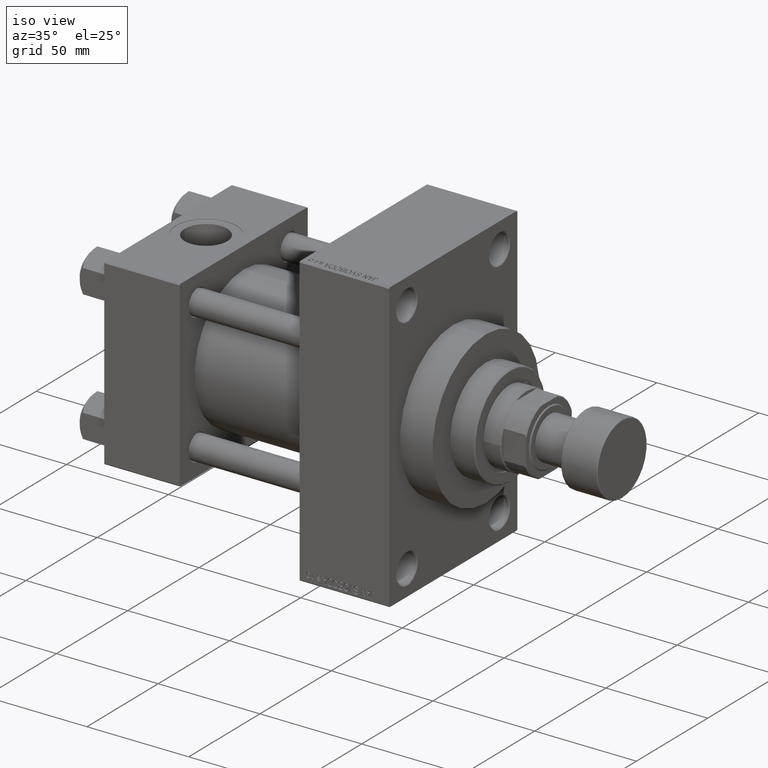
[diagram: clean part render]
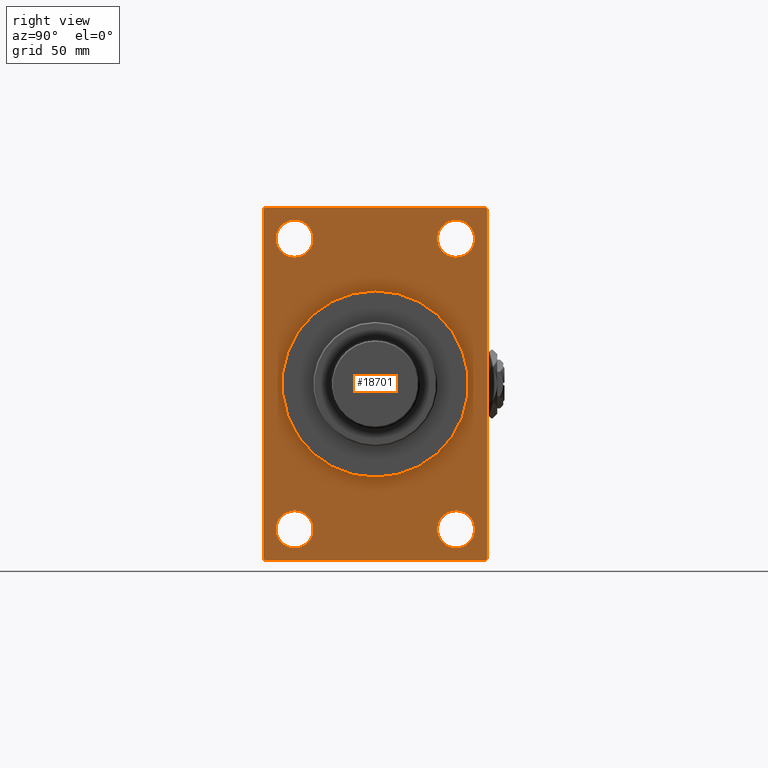
[diagram: tour spotlight — one face highlighted and labeled with its STEP entity id]
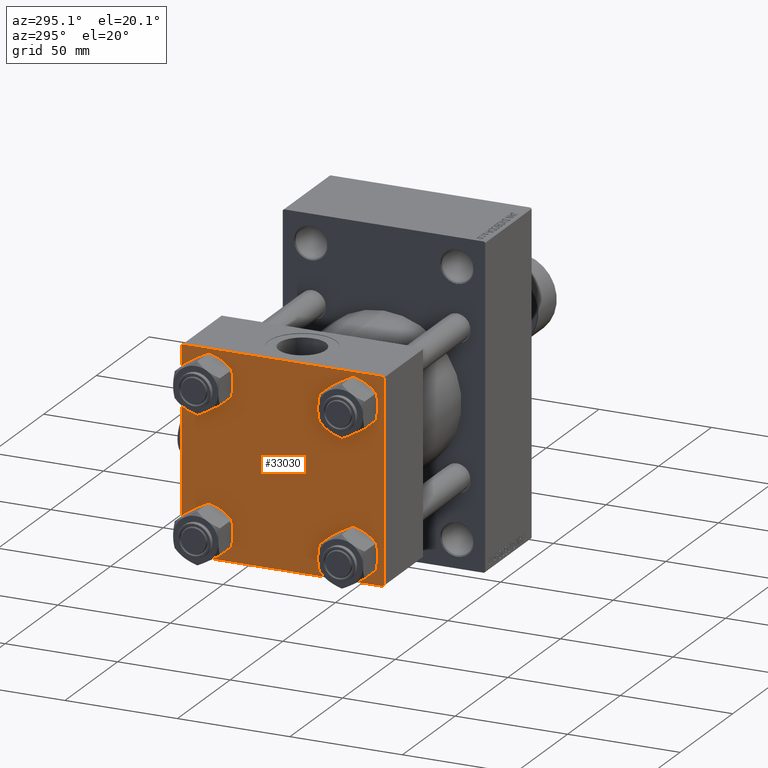
[diagram: tour spotlight — one face highlighted and labeled with its STEP entity id]
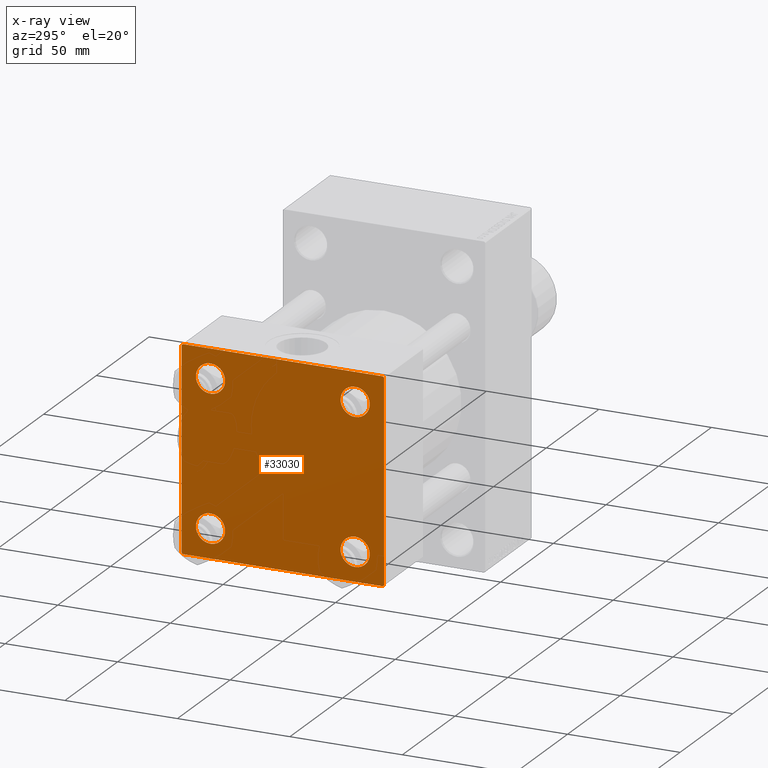
[diagram: x-ray of the same camera — body ghosted, this tour face saturated]
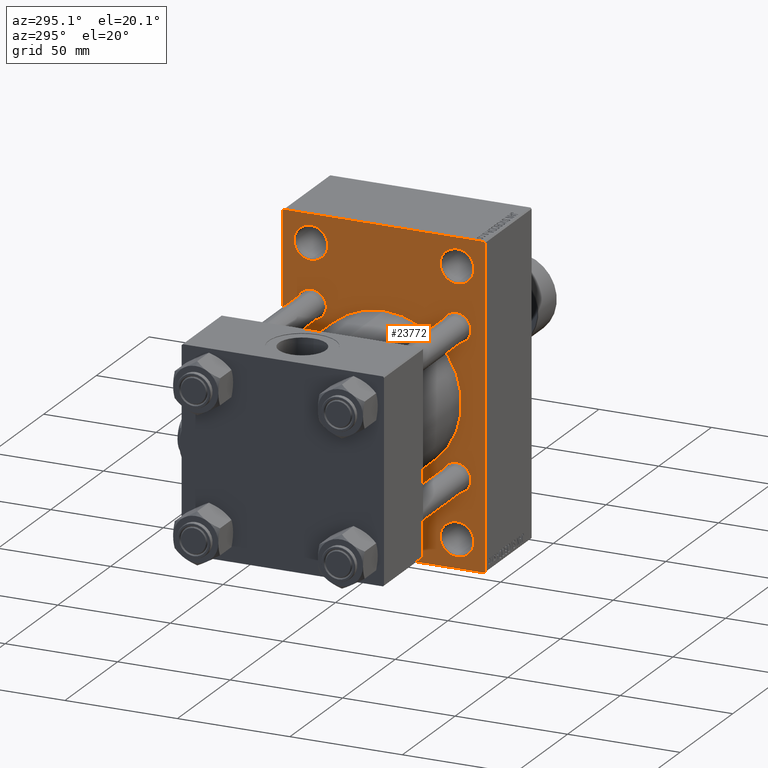
[diagram: tour spotlight — one face highlighted and labeled with its STEP entity id]
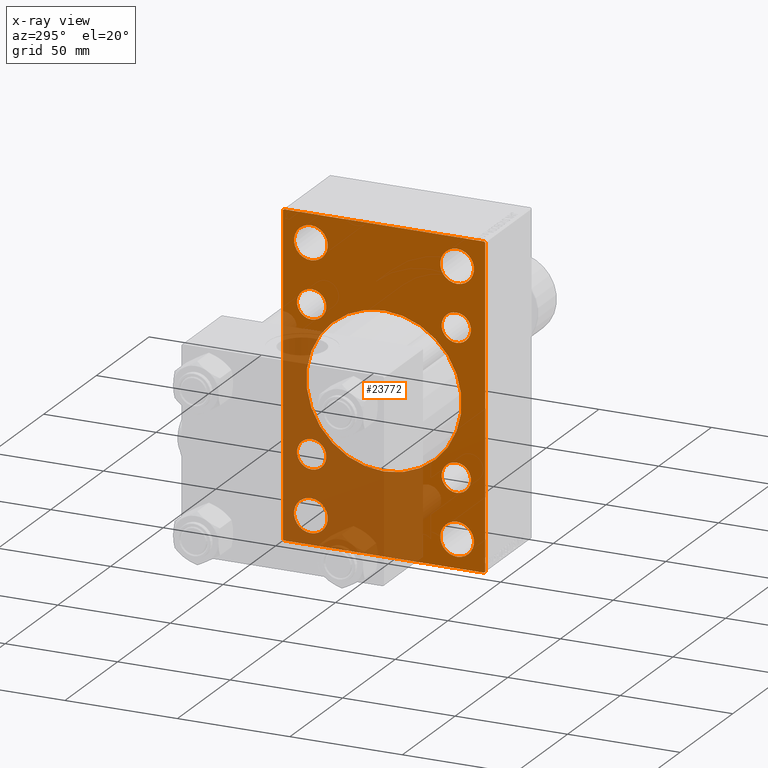
[diagram: x-ray of the same camera — body ghosted, this tour face saturated]
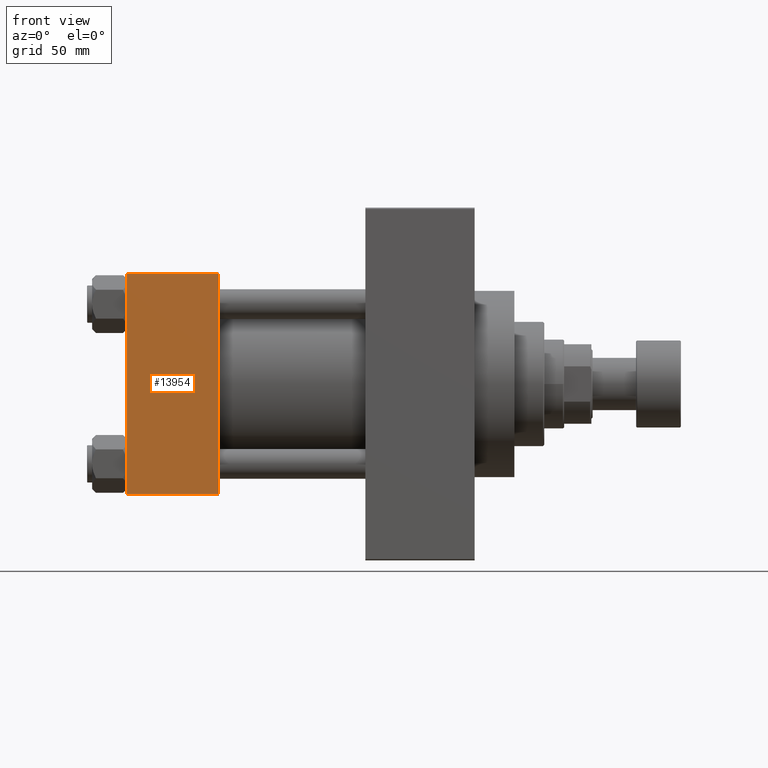
[diagram: tour spotlight — one face highlighted and labeled with its STEP entity id]
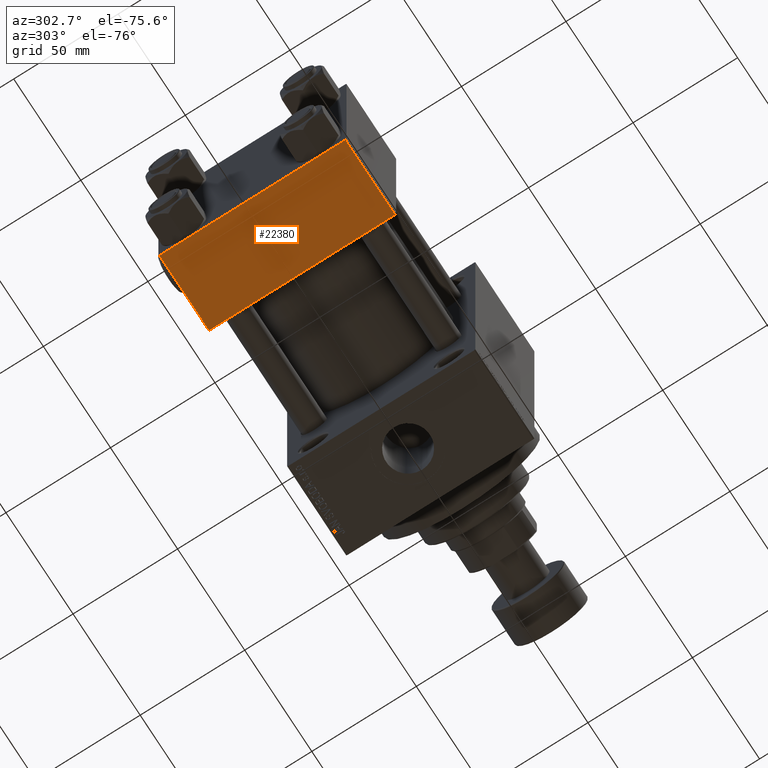
[diagram: tour spotlight — one face highlighted and labeled with its STEP entity id]
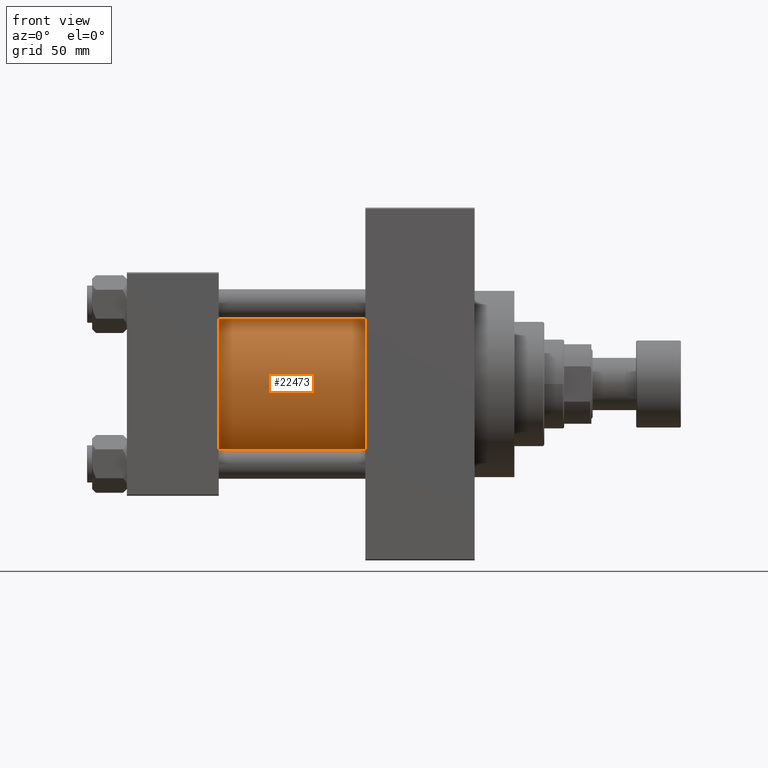
[diagram: tour spotlight — one face highlighted and labeled with its STEP entity id]
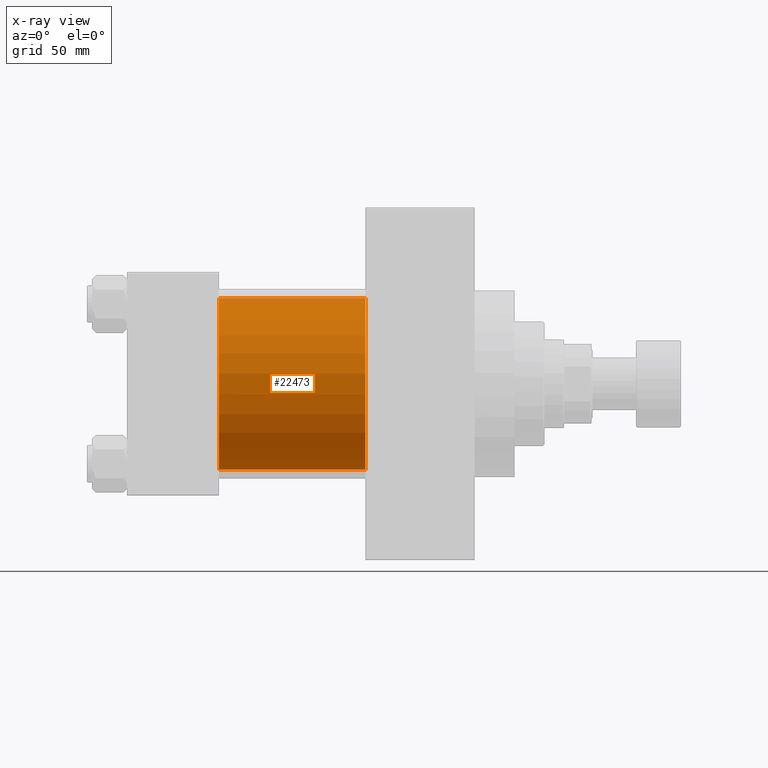
[diagram: x-ray of the same camera — body ghosted, this tour face saturated]
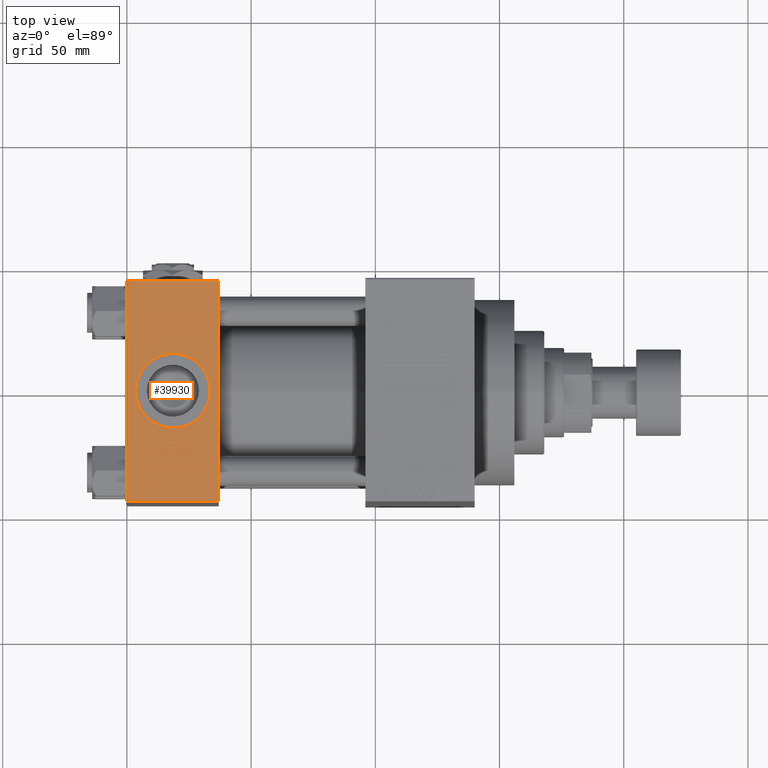
[diagram: tour spotlight — one face highlighted and labeled with its STEP entity id]
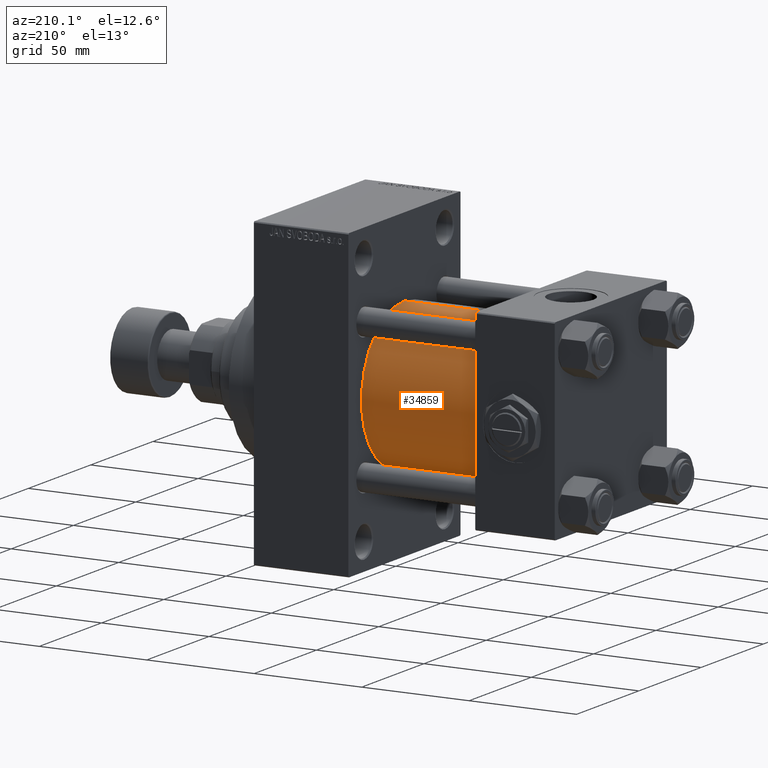
[diagram: tour spotlight — one face highlighted and labeled with its STEP entity id]
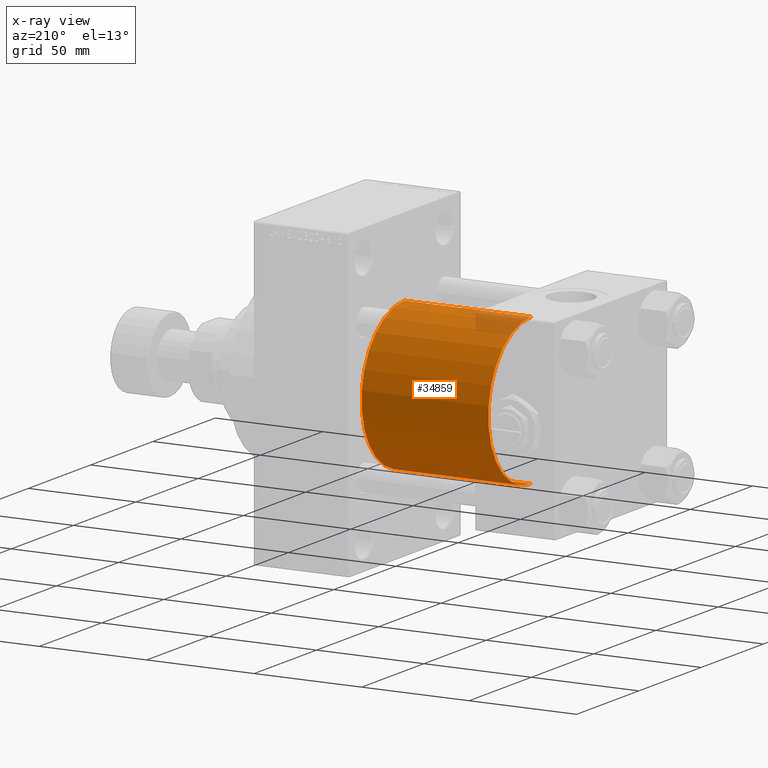
[diagram: x-ray of the same camera — body ghosted, this tour face saturated]
A machine part: a face-by-face anatomy tour. The part has 1170 B-rep faces; the first image is the clean iso view, then the 8 largest visible faces are spotlighted one at a time (largest first), each with its STEP entity span.

Face 1 — right view, entity #18701. In plain terms, the highlighted planar face has unit normal (-1, 0, 0).
Definition (entity closure, byte-faithful):
#303 = FACE_BOUND ( 'NONE', #28436, .T. ) ;
#427 = DIRECTION ( 'NONE',  ( 0.000000000000000000, 0.000000000000000000, -1.000000000000000000 ) ) ;
#567 = CARTESIAN_POINT ( 'NONE',  ( 140.0000000000000000, 44.50000000000002842, 71.00000000000000000 ) ) ;
#1130 = CIRCLE ( 'NONE', #13867, 7.500000000000027534 ) ;
#1441 = ORIENTED_EDGE ( 'NONE', *, *, #23647, .T. ) ;
#1746 = VERTEX_POINT ( 'NONE', #18978 ) ;
#2241 = EDGE_CURVE ( 'NONE', #1746, #31303, #44624, .T. ) ;
#2284 = VERTEX_POINT ( 'NONE', #9625 ) ;
#2667 = AXIS2_PLACEMENT_3D ( 'NONE', #38617, #12830, #15858 ) ;
#2929 = VECTOR ( 'NONE', #46893, 1000.000000000000000 ) ;
#3070 = CARTESIAN_POINT ( 'NONE',  ( 140.0000000000000000, 4.592425496802575156E-15, -37.50000000000000711 ) ) ;
#4747 = CARTESIAN_POINT ( 'NONE',  ( 140.0000000000000000, -44.49999999999994316, 71.00000000000000000 ) ) ;
#4826 = VERTEX_POINT ( 'NONE', #9898 ) ;
#5350 = CARTESIAN_POINT ( 'NONE',  ( 140.0000000000000000, -32.50000000000001421, -58.49999999999998579 ) ) ;
#5637 = CARTESIAN_POINT ( 'NONE',  ( 140.0000000000000000, 45.00000000000000000, -70.49999999999997158 ) ) ;
#5856 = CIRCLE ( 'NONE', #2667, 7.500000000000027534 ) ;
#5886 = DIRECTION ( 'NONE',  ( 0.000000000000000000, 0.000000000000000000, -1.000000000000000000 ) ) ;
#5911 = DIRECTION ( 'NONE',  ( 1.000000000000000000, 0.000000000000000000, 0.000000000000000000 ) ) ;
#6078 = AXIS2_PLACEMENT_3D ( 'NONE', #14985, #7985, #41976 ) ;
#6233 = VERTEX_POINT ( 'NONE', #7970 ) ;
#6430 = CARTESIAN_POINT ( 'NONE',  ( 140.0000000000000000, -32.50000000000001421, -50.99999999999995026 ) ) ;
#7696 = ORIENTED_EDGE ( 'NONE', *, *, #21305, .T. ) ;
#7970 = CARTESIAN_POINT ( 'NONE',  ( 140.0000000000000000, -32.50000000000001421, 66.00000000000004263 ) ) ;
#7985 = DIRECTION ( 'NONE',  ( -1.000000000000000000, -0.000000000000000000, -0.000000000000000000 ) ) ;
#8319 = CIRCLE ( 'NONE', #35434, 7.500000000000020428 ) ;
#8521 = AXIS2_PLACEMENT_3D ( 'NONE', #10548, #49043, #15283 ) ;
#8704 = VERTEX_POINT ( 'NONE', #3070 ) ;
#9399 = CARTESIAN_POINT ( 'NONE',  ( 140.0000000000000000, 45.00000000000000000, 71.00000000000000000 ) ) ;
#9625 = CARTESIAN_POINT ( 'NONE',  ( 140.0000000000000000, 45.00000000000000000, 70.50000000000001421 ) ) ;
#9898 = CARTESIAN_POINT ( 'NONE',  ( 140.0000000000000000, 32.49999999999998579, -66.00000000000000000 ) ) ;
#9945 = CARTESIAN_POINT ( 'NONE',  ( 140.0000000000000000, 32.49999999999998579, 50.99999999999999289 ) ) ;
#10462 = DIRECTION ( 'NONE',  ( -1.000000000000000000, -0.000000000000000000, -0.000000000000000000 ) ) ;
#10548 = CARTESIAN_POINT ( 'NONE',  ( 140.0000000000000000, 0.000000000000000000, 0.000000000000000000 ) ) ;
#10774 = DIRECTION ( 'NONE',  ( 0.000000000000000000, 0.000000000000000000, 1.000000000000000000 ) ) ;
#10856 = DIRECTION ( 'NONE',  ( -0.000000000000000000, -0.7071067811865474617, -0.7071067811865474617 ) ) ;
#11156 = VERTEX_POINT ( 'NONE', #6430 ) ;
#11817 = EDGE_CURVE ( 'NONE', #28475, #38226, #8319, .T. ) ;
#11894 = DIRECTION ( 'NONE',  ( 0.000000000000000000, -1.000000000000000000, 0.000000000000000000 ) ) ;
#12439 = ORIENTED_EDGE ( 'NONE', *, *, #18253, .F. ) ;
#12467 = VECTOR ( 'NONE', #35544, 1000.000000000000114 ) ;
#12830 = DIRECTION ( 'NONE',  ( -1.000000000000000000, -0.000000000000000000, -0.000000000000000000 ) ) ;
#12959 = VERTEX_POINT ( 'NONE', #4747 ) ;
#13191 = AXIS2_PLACEMENT_3D ( 'NONE', #5350, #31867, #28845 ) ;
#13596 = ORIENTED_EDGE ( 'NONE', *, *, #11817, .T. ) ;
#13867 = AXIS2_PLACEMENT_3D ( 'NONE', #42268, #49024, #10774 ) ;
#13894 = LINE ( 'NONE', #9399, #39495 ) ;
#14100 = DIRECTION ( 'NONE',  ( 0.000000000000000000, 0.000000000000000000, 1.000000000000000000 ) ) ;
#14167 = VECTOR ( 'NONE', #25771, 1000.000000000000000 ) ;
#14493 = CIRCLE ( 'NONE', #41608, 7.500000000000034639 ) ;
#14985 = CARTESIAN_POINT ( 'NONE',  ( 140.0000000000000000, 32.49999999999998579, 58.50000000000000711 ) ) ;
#15283 = DIRECTION ( 'NONE',  ( -0.000000000000000000, 0.000000000000000000, 1.000000000000000000 ) ) ;
#15858 = DIRECTION ( 'NONE',  ( 0.000000000000000000, 0.000000000000000000, 1.000000000000000000 ) ) ;
#16172 = LINE ( 'NONE', #39425, #27643 ) ;
#16190 = CARTESIAN_POINT ( 'NONE',  ( 140.0000000000000000, 44.49999999999997158, -71.00000000000000000 ) ) ;
#16675 = DIRECTION ( 'NONE',  ( -0.000000000000000000, 0.7071067811865474617, 0.7071067811865474617 ) ) ;
#16689 = ORIENTED_EDGE ( 'NONE', *, *, #34744, .T. ) ;
#17284 = EDGE_CURVE ( 'NONE', #2284, #29474, #24026, .T. ) ;
#17337 = EDGE_CURVE ( 'NONE', #38226, #28475, #48433, .T. ) ;
#17492 = EDGE_LOOP ( 'NONE', ( #34453, #16689 ) ) ;
#18162 = AXIS2_PLACEMENT_3D ( 'NONE', #33708, #10462, #25715 ) ;
#18189 = EDGE_CURVE ( 'NONE', #28455, #8704, #28477, .T. ) ;
#18253 = EDGE_CURVE ( 'NONE', #42502, #31303, #23637, .T. ) ;
#18299 = FACE_BOUND ( 'NONE', #47870, .T. ) ;
#18364 = CARTESIAN_POINT ( 'NONE',  ( 140.0000000000000000, -45.00000000000000000, 70.49999999999997158 ) ) ;
#18408 = EDGE_CURVE ( 'NONE', #12959, #29257, #41845, .T. ) ;
#18532 = PLANE ( 'NONE',  #8521 ) ;
#18701 = ADVANCED_FACE ( 'NONE', ( #25810, #18299, #41300, #49286, #303, #26802 ), #18532, .F. ) ;
#18978 = CARTESIAN_POINT ( 'NONE',  ( 140.0000000000000000, -45.00000000000000000, -70.50000000000001421 ) ) ;
#19926 = CARTESIAN_POINT ( 'NONE',  ( 140.0000000000000000, -32.50000000000001421, -66.00000000000000000 ) ) ;
#20130 = LINE ( 'NONE', #38154, #37782 ) ;
#20738 = EDGE_LOOP ( 'NONE', ( #1441, #34643, #12439, #23628, #46663, #37249, #25433, #43326 ) ) ;
#20773 = ORIENTED_EDGE ( 'NONE', *, *, #18189, .F. ) ;
#21305 = EDGE_CURVE ( 'NONE', #22279, #4826, #39761, .T. ) ;
#21626 = CARTESIAN_POINT ( 'NONE',  ( 140.0000000000000000, -44.50000000000002842, -71.00000000000000000 ) ) ;
#21775 = LINE ( 'NONE', #37027, #14167 ) ;
#22279 = VERTEX_POINT ( 'NONE', #44965 ) ;
#22782 = CIRCLE ( 'NONE', #13191, 7.500000000000034639 ) ;
#23080 = VERTEX_POINT ( 'NONE', #19926 ) ;
#23565 = CARTESIAN_POINT ( 'NONE',  ( 140.0000000000000000, -32.50000000000001421, -58.49999999999998579 ) ) ;
#23628 = ORIENTED_EDGE ( 'NONE', *, *, #40876, .T. ) ;
#23637 = LINE ( 'NONE', #42643, #2929 ) ;
#23647 = EDGE_CURVE ( 'NONE', #29257, #1746, #21775, .T. ) ;
#24026 = LINE ( 'NONE', #567, #12467 ) ;
#24468 = AXIS2_PLACEMENT_3D ( 'NONE', #42397, #34663, #427 ) ;
#24867 = VERTEX_POINT ( 'NONE', #32424 ) ;
#25433 = ORIENTED_EDGE ( 'NONE', *, *, #33658, .T. ) ;
#25715 = DIRECTION ( 'NONE',  ( 0.000000000000000000, 0.000000000000000000, 1.000000000000000000 ) ) ;
#25771 = DIRECTION ( 'NONE',  ( 0.000000000000000000, 0.000000000000000000, -1.000000000000000000 ) ) ;
#25810 = FACE_BOUND ( 'NONE', #17492, .T. ) ;
#26011 = AXIS2_PLACEMENT_3D ( 'NONE', #33101, #48351, #14100 ) ;
#26118 = AXIS2_PLACEMENT_3D ( 'NONE', #27938, #5911, #36919 ) ;
#26802 = FACE_OUTER_BOUND ( 'NONE', #20738, .T. ) ;
#26921 = VECTOR ( 'NONE', #10856, 1000.000000000000114 ) ;
#27159 = CARTESIAN_POINT ( 'NONE',  ( 140.0000000000000000, 44.50000000000002842, 71.00000000000000000 ) ) ;
#27571 = DIRECTION ( 'NONE',  ( -1.000000000000000000, -0.000000000000000000, -0.000000000000000000 ) ) ;
#27643 = VECTOR ( 'NONE', #16675, 1000.000000000000114 ) ;
#27938 = CARTESIAN_POINT ( 'NONE',  ( 140.0000000000000000, 0.000000000000000000, 0.000000000000000000 ) ) ;
#28436 = EDGE_LOOP ( 'NONE', ( #20773, #35299 ) ) ;
#28455 = VERTEX_POINT ( 'NONE', #31674 ) ;
#28475 = VERTEX_POINT ( 'NONE', #44396 ) ;
#28477 = CIRCLE ( 'NONE', #24468, 37.50000000000000711 ) ;
#28845 = DIRECTION ( 'NONE',  ( 0.000000000000000000, 0.000000000000000000, 1.000000000000000000 ) ) ;
#29079 = VECTOR ( 'NONE', #36881, 1000.000000000000114 ) ;
#29257 = VERTEX_POINT ( 'NONE', #30519 ) ;
#29474 = VERTEX_POINT ( 'NONE', #27159 ) ;
#29773 = EDGE_CURVE ( 'NONE', #23080, #11156, #14493, .T. ) ;
#30199 = CARTESIAN_POINT ( 'NONE',  ( 140.0000000000000000, -44.50000000000000000, -71.00000000000000000 ) ) ;
#30519 = CARTESIAN_POINT ( 'NONE',  ( 140.0000000000000000, -45.00000000000000000, 70.49999999999997158 ) ) ;
#31303 = VERTEX_POINT ( 'NONE', #30199 ) ;
#31674 = CARTESIAN_POINT ( 'NONE',  ( 140.0000000000000000, 0.000000000000000000, 37.50000000000000711 ) ) ;
#31867 = DIRECTION ( 'NONE',  ( -1.000000000000000000, -0.000000000000000000, -0.000000000000000000 ) ) ;
#32424 = CARTESIAN_POINT ( 'NONE',  ( 140.0000000000000000, -32.50000000000001421, 50.99999999999999289 ) ) ;
#33101 = CARTESIAN_POINT ( 'NONE',  ( 140.0000000000000000, 32.49999999999998579, -58.49999999999998579 ) ) ;
#33658 = EDGE_CURVE ( 'NONE', #29474, #12959, #20130, .T. ) ;
#33708 = CARTESIAN_POINT ( 'NONE',  ( 140.0000000000000000, 32.49999999999998579, -58.49999999999998579 ) ) ;
#34453 = ORIENTED_EDGE ( 'NONE', *, *, #36698, .T. ) ;
#34643 = ORIENTED_EDGE ( 'NONE', *, *, #2241, .T. ) ;
#34663 = DIRECTION ( 'NONE',  ( 1.000000000000000000, 0.000000000000000000, 0.000000000000000000 ) ) ;
#34744 = EDGE_CURVE ( 'NONE', #6233, #24867, #5856, .T. ) ;
#35299 = ORIENTED_EDGE ( 'NONE', *, *, #45957, .F. ) ;
#35434 = AXIS2_PLACEMENT_3D ( 'NONE', #35787, #43784, #35538 ) ;
#35538 = DIRECTION ( 'NONE',  ( 0.000000000000000000, 0.000000000000000000, 1.000000000000000000 ) ) ;
#35544 = DIRECTION ( 'NONE',  ( 0.000000000000000000, -0.7071067811865474617, 0.7071067811865474617 ) ) ;
#35787 = CARTESIAN_POINT ( 'NONE',  ( 140.0000000000000000, 32.49999999999998579, 58.50000000000000711 ) ) ;
#36698 = EDGE_CURVE ( 'NONE', #24867, #6233, #1130, .T. ) ;
#36881 = DIRECTION ( 'NONE',  ( 0.000000000000000000, 0.7071067811865474617, -0.7071067811865474617 ) ) ;
#36919 = DIRECTION ( 'NONE',  ( 0.000000000000000000, 0.000000000000000000, -1.000000000000000000 ) ) ;
#37027 = CARTESIAN_POINT ( 'NONE',  ( 140.0000000000000000, -45.00000000000000000, 71.00000000000000000 ) ) ;
#37249 = ORIENTED_EDGE ( 'NONE', *, *, #17284, .T. ) ;
#37523 = VERTEX_POINT ( 'NONE', #5637 ) ;
#37782 = VECTOR ( 'NONE', #11894, 1000.000000000000000 ) ;
#38154 = CARTESIAN_POINT ( 'NONE',  ( 140.0000000000000000, 45.00000000000000000, 71.00000000000000000 ) ) ;
#38226 = VERTEX_POINT ( 'NONE', #9945 ) ;
#38449 = ORIENTED_EDGE ( 'NONE', *, *, #29773, .T. ) ;
#38530 = EDGE_CURVE ( 'NONE', #2284, #37523, #13894, .T. ) ;
#38617 = CARTESIAN_POINT ( 'NONE',  ( 140.0000000000000000, -32.50000000000001421, 58.50000000000001421 ) ) ;
#38860 = EDGE_CURVE ( 'NONE', #11156, #23080, #22782, .T. ) ;
#39306 = DIRECTION ( 'NONE',  ( 0.000000000000000000, 0.000000000000000000, 1.000000000000000000 ) ) ;
#39425 = CARTESIAN_POINT ( 'NONE',  ( 140.0000000000000000, 45.00000000000000000, -70.49999999999997158 ) ) ;
#39495 = VECTOR ( 'NONE', #5886, 1000.000000000000000 ) ;
#39761 = CIRCLE ( 'NONE', #18162, 7.500000000000034639 ) ;
#40071 = EDGE_CURVE ( 'NONE', #4826, #22279, #41983, .T. ) ;
#40876 = EDGE_CURVE ( 'NONE', #42502, #37523, #16172, .T. ) ;
#41300 = FACE_BOUND ( 'NONE', #44208, .T. ) ;
#41608 = AXIS2_PLACEMENT_3D ( 'NONE', #23565, #27571, #39306 ) ;
#41845 = LINE ( 'NONE', #18364, #26921 ) ;
#41902 = ORIENTED_EDGE ( 'NONE', *, *, #40071, .T. ) ;
#41976 = DIRECTION ( 'NONE',  ( 0.000000000000000000, 0.000000000000000000, 1.000000000000000000 ) ) ;
#41983 = CIRCLE ( 'NONE', #26011, 7.500000000000034639 ) ;
#42211 = EDGE_LOOP ( 'NONE', ( #47667, #13596 ) ) ;
#42268 = CARTESIAN_POINT ( 'NONE',  ( 140.0000000000000000, -32.50000000000001421, 58.50000000000001421 ) ) ;
#42397 = CARTESIAN_POINT ( 'NONE',  ( 140.0000000000000000, 0.000000000000000000, 0.000000000000000000 ) ) ;
#42502 = VERTEX_POINT ( 'NONE', #16190 ) ;
#42643 = CARTESIAN_POINT ( 'NONE',  ( 140.0000000000000000, 45.00000000000000000, -71.00000000000000000 ) ) ;
#42865 = CIRCLE ( 'NONE', #26118, 37.50000000000000711 ) ;
#43326 = ORIENTED_EDGE ( 'NONE', *, *, #18408, .T. ) ;
#43784 = DIRECTION ( 'NONE',  ( -1.000000000000000000, -0.000000000000000000, -0.000000000000000000 ) ) ;
#44208 = EDGE_LOOP ( 'NONE', ( #41902, #7696 ) ) ;
#44396 = CARTESIAN_POINT ( 'NONE',  ( 140.0000000000000000, 32.49999999999998579, 66.00000000000002842 ) ) ;
#44624 = LINE ( 'NONE', #21626, #29079 ) ;
#44965 = CARTESIAN_POINT ( 'NONE',  ( 140.0000000000000000, 32.49999999999998579, -50.99999999999995026 ) ) ;
#45957 = EDGE_CURVE ( 'NONE', #8704, #28455, #42865, .T. ) ;
#46663 = ORIENTED_EDGE ( 'NONE', *, *, #38530, .F. ) ;
#46893 = DIRECTION ( 'NONE',  ( 0.000000000000000000, -1.000000000000000000, 0.000000000000000000 ) ) ;
#47667 = ORIENTED_EDGE ( 'NONE', *, *, #17337, .T. ) ;
#47870 = EDGE_LOOP ( 'NONE', ( #38449, #47917 ) ) ;
#47917 = ORIENTED_EDGE ( 'NONE', *, *, #38860, .T. ) ;
#48351 = DIRECTION ( 'NONE',  ( -1.000000000000000000, -0.000000000000000000, -0.000000000000000000 ) ) ;
#48433 = CIRCLE ( 'NONE', #6078, 7.500000000000020428 ) ;
#49024 = DIRECTION ( 'NONE',  ( -1.000000000000000000, -0.000000000000000000, -0.000000000000000000 ) ) ;
#49043 = DIRECTION ( 'NONE',  ( -1.000000000000000000, 0.000000000000000000, -0.000000000000000000 ) ) ;
#49286 = FACE_BOUND ( 'NONE', #42211, .T. ) ;

Face 2 — auxiliary view, entity #33030. An x-ray twin of the same camera follows (body ghosted, this face saturated) — the face is partly hidden behind the body. In plain terms, the highlighted planar face has unit normal (-1, 0, 0).
Definition (entity closure, byte-faithful):
#353 = VERTEX_POINT ( 'NONE', #30454 ) ;
#389 = VERTEX_POINT ( 'NONE', #40060 ) ;
#922 = LINE ( 'NONE', #30943, #2542 ) ;
#1348 = CARTESIAN_POINT ( 'NONE',  ( 0.000000000000000000, 45.00000000000000000, 45.00000000000000711 ) ) ;
#1392 = CARTESIAN_POINT ( 'NONE',  ( 0.000000000000000000, 44.74999999999936762, 44.75000000000061107 ) ) ;
#1468 = DIRECTION ( 'NONE',  ( 0.000000000000000000, -0.7071067811865672237, 0.7071067811865279218 ) ) ;
#1807 = AXIS2_PLACEMENT_3D ( 'NONE', #41159, #22167, #48901 ) ;
#1991 = EDGE_LOOP ( 'NONE', ( #23863, #34070 ) ) ;
#2396 = CARTESIAN_POINT ( 'NONE',  ( 0.000000000000000000, 32.14999999999999147, -38.65000000000001990 ) ) ;
#2542 = VECTOR ( 'NONE', #46182, 1000.000000000000114 ) ;
#2784 = VERTEX_POINT ( 'NONE', #36703 ) ;
#3008 = LINE ( 'NONE', #41984, #45281 ) ;
#3738 = EDGE_CURVE ( 'NONE', #19653, #389, #922, .T. ) ;
#3827 = DIRECTION ( 'NONE',  ( -0.000000000000000000, 0.000000000000000000, 1.000000000000000000 ) ) ;
#4122 = VERTEX_POINT ( 'NONE', #38072 ) ;
#4347 = DIRECTION ( 'NONE',  ( 1.000000000000000000, -0.000000000000000000, 0.000000000000000000 ) ) ;
#4600 = VECTOR ( 'NONE', #35234, 1000.000000000000000 ) ;
#4969 = CARTESIAN_POINT ( 'NONE',  ( 0.000000000000000000, -45.00000000000000000, 44.99999999999998579 ) ) ;
#5059 = VECTOR ( 'NONE', #39634, 999.9999999999998863 ) ;
#5104 = DIRECTION ( 'NONE',  ( 0.000000000000000000, 0.000000000000000000, 1.000000000000000000 ) ) ;
#5245 = CARTESIAN_POINT ( 'NONE',  ( 0.000000000000000000, 32.14999999999999147, 32.14999999999999858 ) ) ;
#5477 = EDGE_CURVE ( 'NONE', #36432, #29128, #9798, .T. ) ;
#5845 = ORIENTED_EDGE ( 'NONE', *, *, #20219, .F. ) ;
#6406 = ORIENTED_EDGE ( 'NONE', *, *, #34738, .F. ) ;
#6839 = EDGE_CURVE ( 'NONE', #29128, #36432, #21023, .T. ) ;
#7851 = VERTEX_POINT ( 'NONE', #14312 ) ;
#8845 = EDGE_LOOP ( 'NONE', ( #23822, #40829 ) ) ;
#8996 = DIRECTION ( 'NONE',  ( 0.000000000000000000, 0.000000000000000000, 1.000000000000000000 ) ) ;
#9798 = CIRCLE ( 'NONE', #17768, 6.499999999999977796 ) ;
#10628 = AXIS2_PLACEMENT_3D ( 'NONE', #23333, #4347, #26862 ) ;
#10680 = EDGE_CURVE ( 'NONE', #2784, #18225, #35639, .T. ) ;
#11067 = VERTEX_POINT ( 'NONE', #43444 ) ;
#12198 = EDGE_CURVE ( 'NONE', #11067, #33345, #26667, .T. ) ;
#12370 = AXIS2_PLACEMENT_3D ( 'NONE', #5245, #19524, #8996 ) ;
#12703 = EDGE_CURVE ( 'NONE', #26475, #7851, #40255, .T. ) ;
#13498 = DIRECTION ( 'NONE',  ( 0.000000000000000000, 0.000000000000000000, -1.000000000000000000 ) ) ;
#13956 = DIRECTION ( 'NONE',  ( 1.000000000000000000, -0.000000000000000000, 0.000000000000000000 ) ) ;
#14312 = CARTESIAN_POINT ( 'NONE',  ( 0.000000000000000000, 32.14999999999999147, -25.64999999999997726 ) ) ;
#14363 = EDGE_CURVE ( 'NONE', #353, #21154, #24321, .T. ) ;
#14755 = VECTOR ( 'NONE', #14931, 1000.000000000000000 ) ;
#14931 = DIRECTION ( 'NONE',  ( 0.000000000000000000, -1.000000000000000000, -7.709882115452476934E-17 ) ) ;
#15023 = CARTESIAN_POINT ( 'NONE',  ( 0.000000000000000000, -32.14999999999997726, -32.15000000000000568 ) ) ;
#15423 = EDGE_CURVE ( 'NONE', #44346, #31448, #26066, .T. ) ;
#15598 = ORIENTED_EDGE ( 'NONE', *, *, #12198, .T. ) ;
#15819 = FACE_BOUND ( 'NONE', #1991, .T. ) ;
#16131 = CARTESIAN_POINT ( 'NONE',  ( 0.000000000000000000, 45.00000000000000000, 44.49999999999999289 ) ) ;
#16653 = EDGE_CURVE ( 'NONE', #21154, #353, #38790, .T. ) ;
#16959 = DIRECTION ( 'NONE',  ( 0.000000000000000000, 0.000000000000000000, 1.000000000000000000 ) ) ;
#17009 = CARTESIAN_POINT ( 'NONE',  ( 0.000000000000000000, -45.00000000000000000, 44.49999999999998579 ) ) ;
#17032 = VECTOR ( 'NONE', #47093, 1000.000000000000000 ) ;
#17358 = CIRCLE ( 'NONE', #34928, 6.499999999999977796 ) ;
#17768 = AXIS2_PLACEMENT_3D ( 'NONE', #15023, #38028, #25551 ) ;
#18225 = VERTEX_POINT ( 'NONE', #16131 ) ;
#18682 = AXIS2_PLACEMENT_3D ( 'NONE', #19875, #39350, #5104 ) ;
#19524 = DIRECTION ( 'NONE',  ( 1.000000000000000000, -0.000000000000000000, 0.000000000000000000 ) ) ;
#19653 = VERTEX_POINT ( 'NONE', #17009 ) ;
#19728 = EDGE_CURVE ( 'NONE', #4122, #47655, #3008, .T. ) ;
#19875 = CARTESIAN_POINT ( 'NONE',  ( 0.000000000000000000, 32.14999999999999147, -32.14999999999999858 ) ) ;
#20219 = EDGE_CURVE ( 'NONE', #19653, #31448, #27980, .T. ) ;
#21023 = CIRCLE ( 'NONE', #10628, 6.499999999999977796 ) ;
#21154 = VERTEX_POINT ( 'NONE', #23239 ) ;
#22167 = DIRECTION ( 'NONE',  ( 1.000000000000000000, -0.000000000000000000, 0.000000000000000000 ) ) ;
#22257 = DIRECTION ( 'NONE',  ( 1.000000000000000000, -0.000000000000000000, 0.000000000000000000 ) ) ;
#22654 = AXIS2_PLACEMENT_3D ( 'NONE', #35237, #42973, #16959 ) ;
#22675 = LINE ( 'NONE', #26199, #14755 ) ;
#23076 = FACE_BOUND ( 'NONE', #29663, .T. ) ;
#23239 = CARTESIAN_POINT ( 'NONE',  ( 0.000000000000000000, 32.14999999999999147, 25.64999999999997726 ) ) ;
#23333 = CARTESIAN_POINT ( 'NONE',  ( 0.000000000000000000, -32.14999999999997726, -32.15000000000000568 ) ) ;
#23822 = ORIENTED_EDGE ( 'NONE', *, *, #33594, .T. ) ;
#23863 = ORIENTED_EDGE ( 'NONE', *, *, #14363, .T. ) ;
#24321 = CIRCLE ( 'NONE', #12370, 6.500000000000019540 ) ;
#25503 = EDGE_LOOP ( 'NONE', ( #41013, #37820, #47313, #30515, #5845, #42571, #6406, #46546 ) ) ;
#25551 = DIRECTION ( 'NONE',  ( 0.000000000000000000, 0.000000000000000000, 1.000000000000000000 ) ) ;
#25767 = ORIENTED_EDGE ( 'NONE', *, *, #44426, .T. ) ;
#26066 = LINE ( 'NONE', #41306, #45134 ) ;
#26199 = CARTESIAN_POINT ( 'NONE',  ( 0.000000000000000000, 45.00000000000000000, -44.99999999999999289 ) ) ;
#26475 = VERTEX_POINT ( 'NONE', #2396 ) ;
#26667 = CIRCLE ( 'NONE', #22654, 6.499999999999977796 ) ;
#26862 = DIRECTION ( 'NONE',  ( 0.000000000000000000, 0.000000000000000000, 1.000000000000000000 ) ) ;
#27095 = CARTESIAN_POINT ( 'NONE',  ( 0.000000000000000000, 0.000000000000000000, 0.000000000000000000 ) ) ;
#27687 = EDGE_LOOP ( 'NONE', ( #15598, #25767 ) ) ;
#27980 = LINE ( 'NONE', #4969, #4600 ) ;
#28139 = AXIS2_PLACEMENT_3D ( 'NONE', #27095, #46320, #3827 ) ;
#29128 = VERTEX_POINT ( 'NONE', #48288 ) ;
#29277 = CARTESIAN_POINT ( 'NONE',  ( 0.000000000000000000, -44.49999999999994316, -45.00000000000000000 ) ) ;
#29526 = DIRECTION ( 'NONE',  ( 0.000000000000000000, 0.000000000000000000, 1.000000000000000000 ) ) ;
#29663 = EDGE_LOOP ( 'NONE', ( #36855, #44781 ) ) ;
#30454 = CARTESIAN_POINT ( 'NONE',  ( 0.000000000000000000, 32.14999999999999147, 38.65000000000001990 ) ) ;
#30515 = ORIENTED_EDGE ( 'NONE', *, *, #15423, .T. ) ;
#30943 = CARTESIAN_POINT ( 'NONE',  ( -0.000000000000000000, -44.74999999999999289, 44.74999999999999289 ) ) ;
#31448 = VERTEX_POINT ( 'NONE', #40458 ) ;
#33030 = ADVANCED_FACE ( 'NONE', ( #38577, #23076, #34824, #15819, #42555 ), #37832, .T. ) ;
#33213 = VECTOR ( 'NONE', #13498, 1000.000000000000000 ) ;
#33345 = VERTEX_POINT ( 'NONE', #34449 ) ;
#33594 = EDGE_CURVE ( 'NONE', #7851, #26475, #35316, .T. ) ;
#33754 = CARTESIAN_POINT ( 'NONE',  ( 0.000000000000000000, -32.14999999999997726, 32.15000000000000568 ) ) ;
#34070 = ORIENTED_EDGE ( 'NONE', *, *, #16653, .T. ) ;
#34449 = CARTESIAN_POINT ( 'NONE',  ( 0.000000000000000000, -32.14999999999997726, 25.65000000000002700 ) ) ;
#34738 = EDGE_CURVE ( 'NONE', #2784, #389, #35596, .T. ) ;
#34824 = FACE_BOUND ( 'NONE', #8845, .T. ) ;
#34928 = AXIS2_PLACEMENT_3D ( 'NONE', #33754, #22257, #29526 ) ;
#35234 = DIRECTION ( 'NONE',  ( 0.000000000000000000, 0.000000000000000000, -1.000000000000000000 ) ) ;
#35237 = CARTESIAN_POINT ( 'NONE',  ( 0.000000000000000000, -32.14999999999997726, 32.15000000000000568 ) ) ;
#35316 = CIRCLE ( 'NONE', #1807, 6.500000000000019540 ) ;
#35596 = LINE ( 'NONE', #1348, #17032 ) ;
#35639 = LINE ( 'NONE', #1392, #5059 ) ;
#36248 = CARTESIAN_POINT ( 'NONE',  ( 0.000000000000000000, 45.00000000000000000, 45.00000000000000711 ) ) ;
#36432 = VERTEX_POINT ( 'NONE', #39666 ) ;
#36703 = CARTESIAN_POINT ( 'NONE',  ( 0.000000000000000000, 44.49999999999997158, 45.00000000000000711 ) ) ;
#36855 = ORIENTED_EDGE ( 'NONE', *, *, #6839, .T. ) ;
#37820 = ORIENTED_EDGE ( 'NONE', *, *, #19728, .T. ) ;
#37832 = PLANE ( 'NONE',  #28139 ) ;
#38028 = DIRECTION ( 'NONE',  ( 1.000000000000000000, -0.000000000000000000, 0.000000000000000000 ) ) ;
#38072 = CARTESIAN_POINT ( 'NONE',  ( 0.000000000000000000, 45.00000000000000000, -44.49999999999996447 ) ) ;
#38356 = EDGE_CURVE ( 'NONE', #47655, #44346, #22675, .T. ) ;
#38577 = FACE_BOUND ( 'NONE', #27687, .T. ) ;
#38790 = CIRCLE ( 'NONE', #48361, 6.500000000000019540 ) ;
#39350 = DIRECTION ( 'NONE',  ( 1.000000000000000000, -0.000000000000000000, 0.000000000000000000 ) ) ;
#39634 = DIRECTION ( 'NONE',  ( 0.000000000000000000, 0.7071067811865574537, -0.7071067811865376918 ) ) ;
#39666 = CARTESIAN_POINT ( 'NONE',  ( 0.000000000000000000, -32.14999999999997726, -38.64999999999998437 ) ) ;
#40060 = CARTESIAN_POINT ( 'NONE',  ( 0.000000000000000000, -44.49999999999997158, 44.99999999999998579 ) ) ;
#40255 = CIRCLE ( 'NONE', #18682, 6.500000000000019540 ) ;
#40458 = CARTESIAN_POINT ( 'NONE',  ( 0.000000000000000000, -45.00000000000000000, -44.49999999999997158 ) ) ;
#40829 = ORIENTED_EDGE ( 'NONE', *, *, #12703, .T. ) ;
#41013 = ORIENTED_EDGE ( 'NONE', *, *, #41433, .T. ) ;
#41159 = CARTESIAN_POINT ( 'NONE',  ( 0.000000000000000000, 32.14999999999999147, -32.14999999999999858 ) ) ;
#41249 = DIRECTION ( 'NONE',  ( -0.000000000000000000, -0.7071067811865474617, -0.7071067811865474617 ) ) ;
#41306 = CARTESIAN_POINT ( 'NONE',  ( 0.000000000000000000, -44.74999999999873523, -44.75000000000122924 ) ) ;
#41433 = EDGE_CURVE ( 'NONE', #18225, #4122, #47753, .T. ) ;
#41984 = CARTESIAN_POINT ( 'NONE',  ( 0.000000000000000000, 44.74999999999999289, -44.74999999999999289 ) ) ;
#42555 = FACE_OUTER_BOUND ( 'NONE', #25503, .T. ) ;
#42571 = ORIENTED_EDGE ( 'NONE', *, *, #3738, .T. ) ;
#42973 = DIRECTION ( 'NONE',  ( 1.000000000000000000, -0.000000000000000000, 0.000000000000000000 ) ) ;
#43444 = CARTESIAN_POINT ( 'NONE',  ( 0.000000000000000000, -32.14999999999997726, 38.64999999999999147 ) ) ;
#44346 = VERTEX_POINT ( 'NONE', #29277 ) ;
#44426 = EDGE_CURVE ( 'NONE', #33345, #11067, #17358, .T. ) ;
#44781 = ORIENTED_EDGE ( 'NONE', *, *, #5477, .T. ) ;
#45134 = VECTOR ( 'NONE', #1468, 1000.000000000000000 ) ;
#45281 = VECTOR ( 'NONE', #41249, 1000.000000000000114 ) ;
#45412 = CARTESIAN_POINT ( 'NONE',  ( 0.000000000000000000, 44.50000000000000000, -44.99999999999999289 ) ) ;
#46182 = DIRECTION ( 'NONE',  ( -0.000000000000000000, 0.7071067811865474617, 0.7071067811865474617 ) ) ;
#46320 = DIRECTION ( 'NONE',  ( -1.000000000000000000, 0.000000000000000000, -0.000000000000000000 ) ) ;
#46360 = DIRECTION ( 'NONE',  ( 0.000000000000000000, 0.000000000000000000, 1.000000000000000000 ) ) ;
#46546 = ORIENTED_EDGE ( 'NONE', *, *, #10680, .T. ) ;
#47093 = DIRECTION ( 'NONE',  ( 0.000000000000000000, -1.000000000000000000, -2.312964634635742957E-16 ) ) ;
#47313 = ORIENTED_EDGE ( 'NONE', *, *, #38356, .T. ) ;
#47655 = VERTEX_POINT ( 'NONE', #45412 ) ;
#47753 = LINE ( 'NONE', #36248, #33213 ) ;
#48200 = CARTESIAN_POINT ( 'NONE',  ( 0.000000000000000000, 32.14999999999999147, 32.14999999999999858 ) ) ;
#48288 = CARTESIAN_POINT ( 'NONE',  ( 0.000000000000000000, -32.14999999999997726, -25.65000000000002700 ) ) ;
#48361 = AXIS2_PLACEMENT_3D ( 'NONE', #48200, #13956, #46360 ) ;
#48901 = DIRECTION ( 'NONE',  ( 0.000000000000000000, 0.000000000000000000, 1.000000000000000000 ) ) ;

Face 3 — auxiliary view, entity #23772. An x-ray twin of the same camera follows (body ghosted, this face saturated) — the face is partly hidden behind the body. In plain terms, the highlighted planar face has unit normal (-1, 0, 0).
Definition (entity closure, byte-faithful):
#749 = CARTESIAN_POINT ( 'NONE',  ( 96.00000000000000000, -32.14999999999997726, 32.15000000000000568 ) ) ;
#950 = VERTEX_POINT ( 'NONE', #31956 ) ;
#1035 = CIRCLE ( 'NONE', #42528, 7.499999999999978684 ) ;
#1095 = CIRCLE ( 'NONE', #41794, 7.499999999999965361 ) ;
#1146 = DIRECTION ( 'NONE',  ( -0.000000000000000000, -0.7071067811865474617, -0.7071067811865474617 ) ) ;
#1207 = EDGE_CURVE ( 'NONE', #29383, #18960, #41840, .T. ) ;
#1269 = VERTEX_POINT ( 'NONE', #10309 ) ;
#1411 = CIRCLE ( 'NONE', #26189, 7.499999999999965361 ) ;
#1585 = DIRECTION ( 'NONE',  ( 0.000000000000000000, 0.7071067811865474617, -0.7071067811865474617 ) ) ;
#1759 = ORIENTED_EDGE ( 'NONE', *, *, #37352, .T. ) ;
#1852 = AXIS2_PLACEMENT_3D ( 'NONE', #13509, #28513, #39767 ) ;
#1982 = FACE_OUTER_BOUND ( 'NONE', #25229, .T. ) ;
#2035 = CIRCLE ( 'NONE', #41919, 34.50000000000000000 ) ;
#2228 = FACE_BOUND ( 'NONE', #34460, .T. ) ;
#2469 = FACE_BOUND ( 'NONE', #26465, .T. ) ;
#2591 = CARTESIAN_POINT ( 'NONE',  ( 96.00000000000000000, 1.622946243093158675E-15, -34.50000000000000000 ) ) ;
#2915 = CARTESIAN_POINT ( 'NONE',  ( 96.00000000000000000, 44.49999999999997158, -71.00000000000000000 ) ) ;
#3078 = ORIENTED_EDGE ( 'NONE', *, *, #14424, .T. ) ;
#3709 = EDGE_LOOP ( 'NONE', ( #33242, #23867 ) ) ;
#3771 = VERTEX_POINT ( 'NONE', #6636 ) ;
#4181 = CARTESIAN_POINT ( 'NONE',  ( 96.00000000000000000, 32.14999999999999147, -25.64999999999999147 ) ) ;
#4455 = ORIENTED_EDGE ( 'NONE', *, *, #37904, .F. ) ;
#4590 = CIRCLE ( 'NONE', #30935, 7.500000000000000000 ) ;
#4955 = CIRCLE ( 'NONE', #32894, 6.500000000000005329 ) ;
#5192 = EDGE_CURVE ( 'NONE', #26362, #39226, #4955, .T. ) ;
#5275 = DIRECTION ( 'NONE',  ( 1.000000000000000000, 0.000000000000000000, 0.000000000000000000 ) ) ;
#5475 = DIRECTION ( 'NONE',  ( -0.000000000000000000, 0.000000000000000000, 1.000000000000000000 ) ) ;
#5590 = ORIENTED_EDGE ( 'NONE', *, *, #48872, .T. ) ;
#5599 = ORIENTED_EDGE ( 'NONE', *, *, #44200, .T. ) ;
#5614 = DIRECTION ( 'NONE',  ( 1.000000000000000000, 0.000000000000000000, 0.000000000000000000 ) ) ;
#5931 = EDGE_CURVE ( 'NONE', #6656, #17708, #1035, .T. ) ;
#5968 = VERTEX_POINT ( 'NONE', #29615 ) ;
#6231 = CARTESIAN_POINT ( 'NONE',  ( 96.00000000000000000, -32.14999999999997726, -25.64999999999999858 ) ) ;
#6300 = EDGE_LOOP ( 'NONE', ( #5599, #7721 ) ) ;
#6636 = CARTESIAN_POINT ( 'NONE',  ( 96.00000000000000000, -45.00000000000000000, 70.49999999999997158 ) ) ;
#6656 = VERTEX_POINT ( 'NONE', #41904 ) ;
#6951 = VECTOR ( 'NONE', #46471, 1000.000000000000000 ) ;
#7595 = CARTESIAN_POINT ( 'NONE',  ( 96.00000000000000000, 45.00000000000000000, 71.00000000000000000 ) ) ;
#7615 = EDGE_CURVE ( 'NONE', #18960, #29348, #9379, .T. ) ;
#7721 = ORIENTED_EDGE ( 'NONE', *, *, #9934, .T. ) ;
#7763 = AXIS2_PLACEMENT_3D ( 'NONE', #29621, #18355, #10364 ) ;
#7799 = DIRECTION ( 'NONE',  ( 1.000000000000000000, 0.000000000000000000, 0.000000000000000000 ) ) ;
#8115 = DIRECTION ( 'NONE',  ( 0.000000000000000000, 0.000000000000000000, 1.000000000000000000 ) ) ;
#8386 = VERTEX_POINT ( 'NONE', #36139 ) ;
#8583 = LINE ( 'NONE', #24314, #31780 ) ;
#8729 = DIRECTION ( 'NONE',  ( 1.000000000000000000, 0.000000000000000000, 0.000000000000000000 ) ) ;
#8913 = VERTEX_POINT ( 'NONE', #31044 ) ;
#9056 = EDGE_LOOP ( 'NONE', ( #21004, #11704 ) ) ;
#9223 = FACE_BOUND ( 'NONE', #3709, .T. ) ;
#9379 = LINE ( 'NONE', #28136, #44212 ) ;
#9934 = EDGE_CURVE ( 'NONE', #32993, #8386, #37086, .T. ) ;
#10195 = DIRECTION ( 'NONE',  ( 0.000000000000000000, 0.000000000000000000, 1.000000000000000000 ) ) ;
#10309 = CARTESIAN_POINT ( 'NONE',  ( 96.00000000000000000, 32.49999999999998579, -65.99999999999994316 ) ) ;
#10364 = DIRECTION ( 'NONE',  ( 0.000000000000000000, 0.000000000000000000, 1.000000000000000000 ) ) ;
#10806 = DIRECTION ( 'NONE',  ( 0.000000000000000000, 0.000000000000000000, 1.000000000000000000 ) ) ;
#11313 = DIRECTION ( 'NONE',  ( 1.000000000000000000, 0.000000000000000000, 0.000000000000000000 ) ) ;
#11360 = DIRECTION ( 'NONE',  ( 1.000000000000000000, 0.000000000000000000, 0.000000000000000000 ) ) ;
#11704 = ORIENTED_EDGE ( 'NONE', *, *, #5931, .T. ) ;
#12234 = CARTESIAN_POINT ( 'NONE',  ( 96.00000000000000000, -32.50000000000001421, -65.99999999999994316 ) ) ;
#12873 = DIRECTION ( 'NONE',  ( 0.000000000000000000, -0.7071067811865474617, 0.7071067811865474617 ) ) ;
#12962 = VERTEX_POINT ( 'NONE', #12234 ) ;
#13007 = DIRECTION ( 'NONE',  ( 0.000000000000000000, 0.000000000000000000, 1.000000000000000000 ) ) ;
#13366 = CARTESIAN_POINT ( 'NONE',  ( 96.00000000000000000, -2.602085213965210642E-15, 0.000000000000000000 ) ) ;
#13509 = CARTESIAN_POINT ( 'NONE',  ( 96.00000000000000000, -32.50000000000001421, 58.50000000000001421 ) ) ;
#13950 = DIRECTION ( 'NONE',  ( 1.000000000000000000, 0.000000000000000000, 0.000000000000000000 ) ) ;
#14315 = CARTESIAN_POINT ( 'NONE',  ( 96.00000000000000000, -2.602085213965210642E-15, 0.000000000000000000 ) ) ;
#14353 = DIRECTION ( 'NONE',  ( 1.000000000000000000, 0.000000000000000000, 0.000000000000000000 ) ) ;
#14424 = EDGE_CURVE ( 'NONE', #3771, #42220, #48905, .T. ) ;
#14612 = CIRCLE ( 'NONE', #21799, 6.499999999999999112 ) ;
#14819 = ORIENTED_EDGE ( 'NONE', *, *, #7615, .T. ) ;
#14889 = ORIENTED_EDGE ( 'NONE', *, *, #1207, .T. ) ;
#14930 = CIRCLE ( 'NONE', #19045, 34.50000000000000000 ) ;
#14965 = CIRCLE ( 'NONE', #7763, 6.500000000000005329 ) ;
#15070 = DIRECTION ( 'NONE',  ( 1.000000000000000000, 0.000000000000000000, 0.000000000000000000 ) ) ;
#15176 = CARTESIAN_POINT ( 'NONE',  ( 96.00000000000000000, -2.602085213965210642E-15, 34.50000000000000000 ) ) ;
#15392 = CARTESIAN_POINT ( 'NONE',  ( 96.00000000000000000, 45.00000000000000000, 70.50000000000001421 ) ) ;
#15413 = EDGE_CURVE ( 'NONE', #42739, #23071, #2035, .T. ) ;
#15569 = CARTESIAN_POINT ( 'NONE',  ( 96.00000000000000000, 32.14999999999999147, 32.14999999999999858 ) ) ;
#15632 = CIRCLE ( 'NONE', #42770, 6.500000000000005329 ) ;
#15795 = CARTESIAN_POINT ( 'NONE',  ( 96.00000000000000000, -32.50000000000001421, 58.50000000000001421 ) ) ;
#15796 = VECTOR ( 'NONE', #21723, 1000.000000000000000 ) ;
#15984 = CARTESIAN_POINT ( 'NONE',  ( 96.00000000000000000, 32.14999999999999147, -32.14999999999999858 ) ) ;
#16094 = EDGE_CURVE ( 'NONE', #32617, #18098, #15632, .T. ) ;
#16321 = CIRCLE ( 'NONE', #44266, 7.499999999999965361 ) ;
#16397 = DIRECTION ( 'NONE',  ( 1.000000000000000000, 0.000000000000000000, 0.000000000000000000 ) ) ;
#16437 = AXIS2_PLACEMENT_3D ( 'NONE', #749, #38491, #27246 ) ;
#16472 = CARTESIAN_POINT ( 'NONE',  ( 96.00000000000000000, -32.50000000000001421, -58.49999999999998579 ) ) ;
#16492 = EDGE_CURVE ( 'NONE', #950, #18951, #40389, .T. ) ;
#16630 = CARTESIAN_POINT ( 'NONE',  ( 96.00000000000000000, -57.75000000000000000, -57.75000000000000000 ) ) ;
#16711 = EDGE_CURVE ( 'NONE', #17708, #6656, #39571, .T. ) ;
#16890 = CARTESIAN_POINT ( 'NONE',  ( 96.00000000000000000, -32.14999999999997726, -32.15000000000000568 ) ) ;
#17217 = DIRECTION ( 'NONE',  ( -1.000000000000000000, 0.000000000000000000, -0.000000000000000000 ) ) ;
#17708 = VERTEX_POINT ( 'NONE', #46338 ) ;
#17820 = ORIENTED_EDGE ( 'NONE', *, *, #47129, .T. ) ;
#17942 = CARTESIAN_POINT ( 'NONE',  ( 96.00000000000000000, 32.49999999999998579, -58.49999999999998579 ) ) ;
#18098 = VERTEX_POINT ( 'NONE', #37443 ) ;
#18302 = EDGE_CURVE ( 'NONE', #8913, #35491, #20652, .T. ) ;
#18355 = DIRECTION ( 'NONE',  ( 1.000000000000000000, 0.000000000000000000, 0.000000000000000000 ) ) ;
#18829 = CARTESIAN_POINT ( 'NONE',  ( 96.00000000000000000, -32.14999999999997726, 32.15000000000000568 ) ) ;
#18915 = CARTESIAN_POINT ( 'NONE',  ( 96.00000000000000000, 32.14999999999999147, 25.64999999999998792 ) ) ;
#18951 = VERTEX_POINT ( 'NONE', #25003 ) ;
#18960 = VERTEX_POINT ( 'NONE', #29267 ) ;
#19045 = AXIS2_PLACEMENT_3D ( 'NONE', #13366, #5614, #24108 ) ;
#19070 = DIRECTION ( 'NONE',  ( 0.000000000000000000, 0.000000000000000000, 1.000000000000000000 ) ) ;
#19219 = ORIENTED_EDGE ( 'NONE', *, *, #22713, .T. ) ;
#19353 = DIRECTION ( 'NONE',  ( 0.000000000000000000, 0.000000000000000000, -1.000000000000000000 ) ) ;
#19587 = DIRECTION ( 'NONE',  ( 1.000000000000000000, 0.000000000000000000, 0.000000000000000000 ) ) ;
#19635 = AXIS2_PLACEMENT_3D ( 'NONE', #48459, #11360, #8115 ) ;
#19777 = AXIS2_PLACEMENT_3D ( 'NONE', #40221, #17217, #5475 ) ;
#19848 = EDGE_CURVE ( 'NONE', #29348, #8913, #20222, .T. ) ;
#20222 = LINE ( 'NONE', #27243, #6951 ) ;
#20652 = LINE ( 'NONE', #16630, #30874 ) ;
#20771 = CARTESIAN_POINT ( 'NONE',  ( 96.00000000000000000, -44.49999999999994316, 71.00000000000000000 ) ) ;
#20849 = LINE ( 'NONE', #24331, #21152 ) ;
#20977 = FACE_BOUND ( 'NONE', #6300, .T. ) ;
#21004 = ORIENTED_EDGE ( 'NONE', *, *, #16711, .T. ) ;
#21152 = VECTOR ( 'NONE', #36086, 1000.000000000000000 ) ;
#21162 = VECTOR ( 'NONE', #44902, 1000.000000000000114 ) ;
#21723 = DIRECTION ( 'NONE',  ( 0.000000000000000000, -1.000000000000000000, 0.000000000000000000 ) ) ;
#21799 = AXIS2_PLACEMENT_3D ( 'NONE', #18829, #19587, #45582 ) ;
#21873 = VECTOR ( 'NONE', #19353, 1000.000000000000000 ) ;
#22110 = VERTEX_POINT ( 'NONE', #6231 ) ;
#22563 = CARTESIAN_POINT ( 'NONE',  ( 96.00000000000000000, 44.50000000000002842, 71.00000000000000000 ) ) ;
#22683 = ORIENTED_EDGE ( 'NONE', *, *, #25881, .T. ) ;
#22713 = EDGE_CURVE ( 'NONE', #23071, #42739, #14930, .T. ) ;
#22750 = ORIENTED_EDGE ( 'NONE', *, *, #24500, .F. ) ;
#22757 = EDGE_LOOP ( 'NONE', ( #5590, #36165 ) ) ;
#23071 = VERTEX_POINT ( 'NONE', #15176 ) ;
#23212 = EDGE_CURVE ( 'NONE', #22110, #5968, #34107, .T. ) ;
#23772 = ADVANCED_FACE ( 'NONE', ( #20977, #9223, #2228, #43472, #24725, #39972, #2469, #36225, #32955, #1982 ), #24471, .T. ) ;
#23867 = ORIENTED_EDGE ( 'NONE', *, *, #36071, .T. ) ;
#24108 = DIRECTION ( 'NONE',  ( 0.000000000000000000, 0.000000000000000000, -1.000000000000000000 ) ) ;
#24314 = CARTESIAN_POINT ( 'NONE',  ( 96.00000000000000000, 57.75000000000000000, 57.75000000000000000 ) ) ;
#24331 = CARTESIAN_POINT ( 'NONE',  ( 96.00000000000000000, -45.00000000000000000, 71.00000000000000000 ) ) ;
#24471 = PLANE ( 'NONE',  #19777 ) ;
#24500 = EDGE_CURVE ( 'NONE', #39938, #42220, #32489, .T. ) ;
#24725 = FACE_BOUND ( 'NONE', #48729, .T. ) ;
#24896 = EDGE_CURVE ( 'NONE', #47860, #12962, #1411, .T. ) ;
#25003 = CARTESIAN_POINT ( 'NONE',  ( 96.00000000000000000, -32.14999999999997726, 38.65000000000001279 ) ) ;
#25229 = EDGE_LOOP ( 'NONE', ( #34147, #44736, #4455, #3078, #22750, #48344, #14889, #14819 ) ) ;
#25663 = DIRECTION ( 'NONE',  ( 0.000000000000000000, 0.000000000000000000, 1.000000000000000000 ) ) ;
#25777 = CARTESIAN_POINT ( 'NONE',  ( 96.00000000000000000, 32.14999999999999147, 38.65000000000001279 ) ) ;
#25881 = EDGE_CURVE ( 'NONE', #41531, #1269, #33403, .T. ) ;
#26189 = AXIS2_PLACEMENT_3D ( 'NONE', #33901, #49139, #25663 ) ;
#26362 = VERTEX_POINT ( 'NONE', #18915 ) ;
#26412 = ORIENTED_EDGE ( 'NONE', *, *, #34165, .T. ) ;
#26465 = EDGE_LOOP ( 'NONE', ( #47915, #36680 ) ) ;
#26630 = CARTESIAN_POINT ( 'NONE',  ( 96.00000000000000000, -45.00000000000000000, -70.50000000000001421 ) ) ;
#27243 = CARTESIAN_POINT ( 'NONE',  ( 96.00000000000000000, 45.00000000000000000, -71.00000000000000000 ) ) ;
#27246 = DIRECTION ( 'NONE',  ( 0.000000000000000000, 0.000000000000000000, 1.000000000000000000 ) ) ;
#27665 = DIRECTION ( 'NONE',  ( 0.000000000000000000, 0.000000000000000000, 1.000000000000000000 ) ) ;
#27777 = CIRCLE ( 'NONE', #43737, 6.500000000000005329 ) ;
#28136 = CARTESIAN_POINT ( 'NONE',  ( 96.00000000000000000, 57.74999999999997158, -57.74999999999997158 ) ) ;
#28190 = EDGE_LOOP ( 'NONE', ( #39025, #17820 ) ) ;
#28513 = DIRECTION ( 'NONE',  ( 1.000000000000000000, 0.000000000000000000, 0.000000000000000000 ) ) ;
#29112 = CARTESIAN_POINT ( 'NONE',  ( 96.00000000000000000, -32.50000000000001421, 51.00000000000000711 ) ) ;
#29267 = CARTESIAN_POINT ( 'NONE',  ( 96.00000000000000000, 45.00000000000000000, -70.49999999999997158 ) ) ;
#29348 = VERTEX_POINT ( 'NONE', #2915 ) ;
#29383 = VERTEX_POINT ( 'NONE', #15392 ) ;
#29615 = CARTESIAN_POINT ( 'NONE',  ( 96.00000000000000000, -32.14999999999997726, -38.65000000000001279 ) ) ;
#29621 = CARTESIAN_POINT ( 'NONE',  ( 96.00000000000000000, -32.14999999999997726, -32.15000000000000568 ) ) ;
#30874 = VECTOR ( 'NONE', #12873, 1000.000000000000114 ) ;
#30935 = AXIS2_PLACEMENT_3D ( 'NONE', #15795, #5275, #31788 ) ;
#31044 = CARTESIAN_POINT ( 'NONE',  ( 96.00000000000000000, -44.50000000000000000, -71.00000000000000000 ) ) ;
#31232 = EDGE_CURVE ( 'NONE', #18098, #32617, #39376, .T. ) ;
#31780 = VECTOR ( 'NONE', #1585, 1000.000000000000114 ) ;
#31788 = DIRECTION ( 'NONE',  ( 0.000000000000000000, 0.000000000000000000, 1.000000000000000000 ) ) ;
#31836 = AXIS2_PLACEMENT_3D ( 'NONE', #16890, #16397, #27665 ) ;
#31956 = CARTESIAN_POINT ( 'NONE',  ( 96.00000000000000000, -32.14999999999997726, 25.65000000000000213 ) ) ;
#32024 = CARTESIAN_POINT ( 'NONE',  ( 96.00000000000000000, 32.49999999999998579, -58.49999999999998579 ) ) ;
#32489 = LINE ( 'NONE', #47741, #15796 ) ;
#32617 = VERTEX_POINT ( 'NONE', #4181 ) ;
#32894 = AXIS2_PLACEMENT_3D ( 'NONE', #41817, #11313, #37356 ) ;
#32955 = FACE_BOUND ( 'NONE', #36649, .T. ) ;
#32993 = VERTEX_POINT ( 'NONE', #29112 ) ;
#33242 = ORIENTED_EDGE ( 'NONE', *, *, #24896, .T. ) ;
#33378 = CARTESIAN_POINT ( 'NONE',  ( 96.00000000000000000, -32.50000000000001421, -51.00000000000001421 ) ) ;
#33403 = CIRCLE ( 'NONE', #49374, 7.499999999999965361 ) ;
#33570 = CARTESIAN_POINT ( 'NONE',  ( 96.00000000000000000, 32.14999999999999147, -32.14999999999999858 ) ) ;
#33901 = CARTESIAN_POINT ( 'NONE',  ( 96.00000000000000000, -32.50000000000001421, -58.49999999999998579 ) ) ;
#34107 = CIRCLE ( 'NONE', #31836, 6.500000000000005329 ) ;
#34147 = ORIENTED_EDGE ( 'NONE', *, *, #19848, .T. ) ;
#34165 = EDGE_CURVE ( 'NONE', #18951, #950, #14612, .T. ) ;
#34460 = EDGE_LOOP ( 'NONE', ( #22683, #1759 ) ) ;
#35491 = VERTEX_POINT ( 'NONE', #26630 ) ;
#36071 = EDGE_CURVE ( 'NONE', #12962, #47860, #1095, .T. ) ;
#36086 = DIRECTION ( 'NONE',  ( 0.000000000000000000, 0.000000000000000000, -1.000000000000000000 ) ) ;
#36139 = CARTESIAN_POINT ( 'NONE',  ( 96.00000000000000000, -32.50000000000001421, 66.00000000000002842 ) ) ;
#36165 = ORIENTED_EDGE ( 'NONE', *, *, #5192, .T. ) ;
#36225 = FACE_BOUND ( 'NONE', #28190, .T. ) ;
#36649 = EDGE_LOOP ( 'NONE', ( #19219, #48412 ) ) ;
#36680 = ORIENTED_EDGE ( 'NONE', *, *, #31232, .T. ) ;
#37086 = CIRCLE ( 'NONE', #1852, 7.500000000000000000 ) ;
#37352 = EDGE_CURVE ( 'NONE', #1269, #41531, #16321, .T. ) ;
#37356 = DIRECTION ( 'NONE',  ( 0.000000000000000000, 0.000000000000000000, 1.000000000000000000 ) ) ;
#37443 = CARTESIAN_POINT ( 'NONE',  ( 96.00000000000000000, 32.14999999999999147, -38.65000000000000568 ) ) ;
#37904 = EDGE_CURVE ( 'NONE', #3771, #35491, #20849, .T. ) ;
#38048 = DIRECTION ( 'NONE',  ( 0.000000000000000000, 0.000000000000000000, -1.000000000000000000 ) ) ;
#38491 = DIRECTION ( 'NONE',  ( 1.000000000000000000, 0.000000000000000000, 0.000000000000000000 ) ) ;
#39025 = ORIENTED_EDGE ( 'NONE', *, *, #23212, .T. ) ;
#39226 = VERTEX_POINT ( 'NONE', #25777 ) ;
#39376 = CIRCLE ( 'NONE', #48946, 6.500000000000005329 ) ;
#39571 = CIRCLE ( 'NONE', #19635, 7.499999999999978684 ) ;
#39767 = DIRECTION ( 'NONE',  ( 0.000000000000000000, 0.000000000000000000, 1.000000000000000000 ) ) ;
#39938 = VERTEX_POINT ( 'NONE', #22563 ) ;
#39972 = FACE_BOUND ( 'NONE', #22757, .T. ) ;
#40221 = CARTESIAN_POINT ( 'NONE',  ( 96.00000000000000000, 0.000000000000000000, 0.000000000000000000 ) ) ;
#40389 = CIRCLE ( 'NONE', #16437, 6.499999999999999112 ) ;
#40492 = CARTESIAN_POINT ( 'NONE',  ( 96.00000000000000000, 32.49999999999998579, -51.00000000000001421 ) ) ;
#40849 = CARTESIAN_POINT ( 'NONE',  ( 96.00000000000000000, 32.49999999999998579, 58.50000000000000711 ) ) ;
#41531 = VERTEX_POINT ( 'NONE', #40492 ) ;
#41794 = AXIS2_PLACEMENT_3D ( 'NONE', #16472, #42487, #42978 ) ;
#41817 = CARTESIAN_POINT ( 'NONE',  ( 96.00000000000000000, 32.14999999999999147, 32.14999999999999858 ) ) ;
#41840 = LINE ( 'NONE', #7595, #21873 ) ;
#41904 = CARTESIAN_POINT ( 'NONE',  ( 96.00000000000000000, 32.49999999999998579, 51.00000000000002842 ) ) ;
#41919 = AXIS2_PLACEMENT_3D ( 'NONE', #14315, #7799, #38048 ) ;
#42118 = ORIENTED_EDGE ( 'NONE', *, *, #16492, .T. ) ;
#42220 = VERTEX_POINT ( 'NONE', #20771 ) ;
#42487 = DIRECTION ( 'NONE',  ( 1.000000000000000000, 0.000000000000000000, 0.000000000000000000 ) ) ;
#42528 = AXIS2_PLACEMENT_3D ( 'NONE', #40849, #14353, #43865 ) ;
#42720 = DIRECTION ( 'NONE',  ( 0.000000000000000000, 0.000000000000000000, 1.000000000000000000 ) ) ;
#42739 = VERTEX_POINT ( 'NONE', #2591 ) ;
#42770 = AXIS2_PLACEMENT_3D ( 'NONE', #33570, #48806, #10806 ) ;
#42978 = DIRECTION ( 'NONE',  ( 0.000000000000000000, 0.000000000000000000, 1.000000000000000000 ) ) ;
#43472 = FACE_BOUND ( 'NONE', #9056, .T. ) ;
#43737 = AXIS2_PLACEMENT_3D ( 'NONE', #15569, #15070, #19070 ) ;
#43865 = DIRECTION ( 'NONE',  ( 0.000000000000000000, 0.000000000000000000, 1.000000000000000000 ) ) ;
#44200 = EDGE_CURVE ( 'NONE', #8386, #32993, #4590, .T. ) ;
#44212 = VECTOR ( 'NONE', #1146, 1000.000000000000114 ) ;
#44266 = AXIS2_PLACEMENT_3D ( 'NONE', #17942, #13950, #10195 ) ;
#44736 = ORIENTED_EDGE ( 'NONE', *, *, #18302, .T. ) ;
#44902 = DIRECTION ( 'NONE',  ( -0.000000000000000000, 0.7071067811865474617, 0.7071067811865474617 ) ) ;
#45582 = DIRECTION ( 'NONE',  ( 0.000000000000000000, 0.000000000000000000, 1.000000000000000000 ) ) ;
#46338 = CARTESIAN_POINT ( 'NONE',  ( 96.00000000000000000, 32.49999999999998579, 65.99999999999998579 ) ) ;
#46471 = DIRECTION ( 'NONE',  ( 0.000000000000000000, -1.000000000000000000, 0.000000000000000000 ) ) ;
#47129 = EDGE_CURVE ( 'NONE', #5968, #22110, #14965, .T. ) ;
#47267 = DIRECTION ( 'NONE',  ( 1.000000000000000000, 0.000000000000000000, 0.000000000000000000 ) ) ;
#47741 = CARTESIAN_POINT ( 'NONE',  ( 96.00000000000000000, 45.00000000000000000, 71.00000000000000000 ) ) ;
#47860 = VERTEX_POINT ( 'NONE', #33378 ) ;
#47915 = ORIENTED_EDGE ( 'NONE', *, *, #16094, .T. ) ;
#48046 = EDGE_CURVE ( 'NONE', #39938, #29383, #8583, .T. ) ;
#48344 = ORIENTED_EDGE ( 'NONE', *, *, #48046, .T. ) ;
#48412 = ORIENTED_EDGE ( 'NONE', *, *, #15413, .T. ) ;
#48459 = CARTESIAN_POINT ( 'NONE',  ( 96.00000000000000000, 32.49999999999998579, 58.50000000000000711 ) ) ;
#48673 = CARTESIAN_POINT ( 'NONE',  ( 96.00000000000000000, -57.74999999999997158, 57.74999999999997158 ) ) ;
#48729 = EDGE_LOOP ( 'NONE', ( #26412, #42118 ) ) ;
#48806 = DIRECTION ( 'NONE',  ( 1.000000000000000000, 0.000000000000000000, 0.000000000000000000 ) ) ;
#48872 = EDGE_CURVE ( 'NONE', #39226, #26362, #27777, .T. ) ;
#48905 = LINE ( 'NONE', #48673, #21162 ) ;
#48946 = AXIS2_PLACEMENT_3D ( 'NONE', #15984, #8729, #42720 ) ;
#49139 = DIRECTION ( 'NONE',  ( 1.000000000000000000, 0.000000000000000000, 0.000000000000000000 ) ) ;
#49374 = AXIS2_PLACEMENT_3D ( 'NONE', #32024, #47267, #13007 ) ;

Face 4 — front view, entity #13954. In plain terms, the highlighted planar face has unit normal (0, 1, 0).
Definition (entity closure, byte-faithful):
#1924 = ORIENTED_EDGE ( 'NONE', *, *, #20219, .T. ) ;
#3517 = EDGE_CURVE ( 'NONE', #31448, #17424, #41926, .T. ) ;
#3564 = LINE ( 'NONE', #15064, #22973 ) ;
#3583 = DIRECTION ( 'NONE',  ( 0.000000000000000000, -0.000000000000000000, 1.000000000000000000 ) ) ;
#3655 = ORIENTED_EDGE ( 'NONE', *, *, #3517, .T. ) ;
#4526 = VERTEX_POINT ( 'NONE', #18690 ) ;
#4600 = VECTOR ( 'NONE', #35234, 1000.000000000000000 ) ;
#4969 = CARTESIAN_POINT ( 'NONE',  ( 0.000000000000000000, -45.00000000000000000, 44.99999999999998579 ) ) ;
#6697 = CARTESIAN_POINT ( 'NONE',  ( 37.00000000000000000, -45.00000000000000000, 44.49999999999998579 ) ) ;
#7836 = FACE_OUTER_BOUND ( 'NONE', #41326, .T. ) ;
#12262 = EDGE_CURVE ( 'NONE', #4526, #19653, #37211, .T. ) ;
#13954 = ADVANCED_FACE ( 'NONE', ( #7836 ), #23314, .F. ) ;
#14338 = ORIENTED_EDGE ( 'NONE', *, *, #12262, .T. ) ;
#15064 = CARTESIAN_POINT ( 'NONE',  ( 37.00000000000000000, -45.00000000000000000, 44.99999999999998579 ) ) ;
#17009 = CARTESIAN_POINT ( 'NONE',  ( 0.000000000000000000, -45.00000000000000000, 44.49999999999998579 ) ) ;
#17424 = VERTEX_POINT ( 'NONE', #37737 ) ;
#18690 = CARTESIAN_POINT ( 'NONE',  ( 37.00000000000000000, -45.00000000000000000, 44.49999999999998579 ) ) ;
#19653 = VERTEX_POINT ( 'NONE', #17009 ) ;
#20219 = EDGE_CURVE ( 'NONE', #19653, #31448, #27980, .T. ) ;
#20275 = VECTOR ( 'NONE', #21709, 1000.000000000000000 ) ;
#20756 = EDGE_CURVE ( 'NONE', #4526, #17424, #3564, .T. ) ;
#21709 = DIRECTION ( 'NONE',  ( -1.000000000000000000, 0.000000000000000000, 0.000000000000000000 ) ) ;
#22973 = VECTOR ( 'NONE', #29346, 1000.000000000000000 ) ;
#23292 = VECTOR ( 'NONE', #26691, 1000.000000000000000 ) ;
#23314 = PLANE ( 'NONE',  #44313 ) ;
#26347 = CARTESIAN_POINT ( 'NONE',  ( 37.00000000000000000, -45.00000000000000000, 44.99999999999998579 ) ) ;
#26691 = DIRECTION ( 'NONE',  ( 1.000000000000000000, 0.000000000000000000, 0.000000000000000000 ) ) ;
#27980 = LINE ( 'NONE', #4969, #4600 ) ;
#29346 = DIRECTION ( 'NONE',  ( 0.000000000000000000, 0.000000000000000000, -1.000000000000000000 ) ) ;
#31448 = VERTEX_POINT ( 'NONE', #40458 ) ;
#35234 = DIRECTION ( 'NONE',  ( 0.000000000000000000, 0.000000000000000000, -1.000000000000000000 ) ) ;
#37211 = LINE ( 'NONE', #6697, #20275 ) ;
#37737 = CARTESIAN_POINT ( 'NONE',  ( 37.00000000000000000, -45.00000000000000000, -44.49999999999997158 ) ) ;
#40458 = CARTESIAN_POINT ( 'NONE',  ( 0.000000000000000000, -45.00000000000000000, -44.49999999999997158 ) ) ;
#41326 = EDGE_LOOP ( 'NONE', ( #1924, #3655, #43903, #14338 ) ) ;
#41926 = LINE ( 'NONE', #48936, #23292 ) ;
#42081 = DIRECTION ( 'NONE',  ( -0.000000000000000000, 1.000000000000000000, 0.000000000000000000 ) ) ;
#43903 = ORIENTED_EDGE ( 'NONE', *, *, #20756, .F. ) ;
#44313 = AXIS2_PLACEMENT_3D ( 'NONE', #26347, #42081, #3583 ) ;
#48936 = CARTESIAN_POINT ( 'NONE',  ( 37.00000000000000000, -45.00000000000000000, -44.50000000000000000 ) ) ;

Face 5 — auxiliary view, entity #22380. In plain terms, the highlighted planar face has unit normal (0, 0, -1).
Definition (entity closure, byte-faithful):
#628 = ORIENTED_EDGE ( 'NONE', *, *, #43392, .T. ) ;
#1535 = EDGE_CURVE ( 'NONE', #45948, #44346, #18781, .T. ) ;
#1949 = ORIENTED_EDGE ( 'NONE', *, *, #1535, .T. ) ;
#2514 = LINE ( 'NONE', #39525, #39703 ) ;
#3536 = LINE ( 'NONE', #11779, #21803 ) ;
#8630 = AXIS2_PLACEMENT_3D ( 'NONE', #18949, #46208, #46437 ) ;
#11701 = FACE_OUTER_BOUND ( 'NONE', #18434, .T. ) ;
#11779 = CARTESIAN_POINT ( 'NONE',  ( 37.00000000000000000, 44.50000000000000000, -44.99999999999999289 ) ) ;
#14755 = VECTOR ( 'NONE', #14931, 1000.000000000000000 ) ;
#14931 = DIRECTION ( 'NONE',  ( 0.000000000000000000, -1.000000000000000000, -7.709882115452476934E-17 ) ) ;
#15704 = PLANE ( 'NONE',  #8630 ) ;
#18434 = EDGE_LOOP ( 'NONE', ( #35431, #34142, #628, #1949 ) ) ;
#18781 = LINE ( 'NONE', #38303, #42591 ) ;
#18949 = CARTESIAN_POINT ( 'NONE',  ( 37.00000000000000000, 45.00000000000000000, -44.99999999999999289 ) ) ;
#19286 = DIRECTION ( 'NONE',  ( 1.000000000000000000, 0.000000000000000000, 0.000000000000000000 ) ) ;
#19293 = DIRECTION ( 'NONE',  ( -1.000000000000000000, 0.000000000000000000, 0.000000000000000000 ) ) ;
#21020 = DIRECTION ( 'NONE',  ( 0.000000000000000000, -1.000000000000000000, -7.709882115452476934E-17 ) ) ;
#21312 = CARTESIAN_POINT ( 'NONE',  ( 37.00000000000000000, 44.50000000000000000, -44.99999999999999289 ) ) ;
#21803 = VECTOR ( 'NONE', #19286, 1000.000000000000000 ) ;
#22380 = ADVANCED_FACE ( 'NONE', ( #11701 ), #15704, .T. ) ;
#22675 = LINE ( 'NONE', #26199, #14755 ) ;
#26199 = CARTESIAN_POINT ( 'NONE',  ( 0.000000000000000000, 45.00000000000000000, -44.99999999999999289 ) ) ;
#29277 = CARTESIAN_POINT ( 'NONE',  ( 0.000000000000000000, -44.49999999999994316, -45.00000000000000000 ) ) ;
#31013 = VERTEX_POINT ( 'NONE', #21312 ) ;
#31134 = EDGE_CURVE ( 'NONE', #47655, #31013, #3536, .T. ) ;
#34142 = ORIENTED_EDGE ( 'NONE', *, *, #31134, .T. ) ;
#35431 = ORIENTED_EDGE ( 'NONE', *, *, #38356, .F. ) ;
#36173 = CARTESIAN_POINT ( 'NONE',  ( 37.00000000000000000, -44.49999999999994316, -45.00000000000000000 ) ) ;
#38303 = CARTESIAN_POINT ( 'NONE',  ( 0.000000000000000000, -44.49999999999997158, -45.00000000000000000 ) ) ;
#38356 = EDGE_CURVE ( 'NONE', #47655, #44346, #22675, .T. ) ;
#39525 = CARTESIAN_POINT ( 'NONE',  ( 37.00000000000000000, 45.00000000000000000, -44.99999999999999289 ) ) ;
#39703 = VECTOR ( 'NONE', #21020, 1000.000000000000000 ) ;
#42591 = VECTOR ( 'NONE', #19293, 1000.000000000000000 ) ;
#43392 = EDGE_CURVE ( 'NONE', #31013, #45948, #2514, .T. ) ;
#44346 = VERTEX_POINT ( 'NONE', #29277 ) ;
#45412 = CARTESIAN_POINT ( 'NONE',  ( 0.000000000000000000, 44.50000000000000000, -44.99999999999999289 ) ) ;
#45948 = VERTEX_POINT ( 'NONE', #36173 ) ;
#46208 = DIRECTION ( 'NONE',  ( 0.000000000000000000, 7.709882115452478166E-17, -1.000000000000000000 ) ) ;
#46437 = DIRECTION ( 'NONE',  ( 0.000000000000000000, 1.000000000000000000, 7.709882115452478166E-17 ) ) ;
#47655 = VERTEX_POINT ( 'NONE', #45412 ) ;

Face 6 — front view, entity #22473. An x-ray twin of the same camera follows (body ghosted, this face saturated) — the face is partly hidden behind the body. In plain terms, the highlighted cylindrical surface (partial cylindrical patch) has radius 34.5 mm, axis along (-1, -0, -0).
Definition (entity closure, byte-faithful):
#2591 = CARTESIAN_POINT ( 'NONE',  ( 96.00000000000000000, 1.622946243093158675E-15, -34.50000000000000000 ) ) ;
#3777 = AXIS2_PLACEMENT_3D ( 'NONE', #36676, #17664, #14173 ) ;
#5583 = CARTESIAN_POINT ( 'NONE',  ( 96.00000000000000000, -2.602085213965210642E-15, 34.50000000000000000 ) ) ;
#5614 = DIRECTION ( 'NONE',  ( 1.000000000000000000, 0.000000000000000000, 0.000000000000000000 ) ) ;
#6168 = LINE ( 'NONE', #48173, #41272 ) ;
#6906 = EDGE_LOOP ( 'NONE', ( #46313, #24857, #42316, #21914 ) ) ;
#10174 = DIRECTION ( 'NONE',  ( -1.000000000000000000, -0.000000000000000000, -0.000000000000000000 ) ) ;
#13366 = CARTESIAN_POINT ( 'NONE',  ( 96.00000000000000000, -2.602085213965210642E-15, 0.000000000000000000 ) ) ;
#14173 = DIRECTION ( 'NONE',  ( 0.000000000000000000, 0.000000000000000000, 1.000000000000000000 ) ) ;
#14930 = CIRCLE ( 'NONE', #19045, 34.50000000000000000 ) ;
#15176 = CARTESIAN_POINT ( 'NONE',  ( 96.00000000000000000, -2.602085213965210642E-15, 34.50000000000000000 ) ) ;
#16339 = LINE ( 'NONE', #5583, #30728 ) ;
#17664 = DIRECTION ( 'NONE',  ( -1.000000000000000000, -0.000000000000000000, -0.000000000000000000 ) ) ;
#19045 = AXIS2_PLACEMENT_3D ( 'NONE', #13366, #5614, #24108 ) ;
#21914 = ORIENTED_EDGE ( 'NONE', *, *, #23217, .T. ) ;
#22473 = ADVANCED_FACE ( 'NONE', ( #33173 ), #48425, .T. ) ;
#22713 = EDGE_CURVE ( 'NONE', #23071, #42739, #14930, .T. ) ;
#23071 = VERTEX_POINT ( 'NONE', #15176 ) ;
#23217 = EDGE_CURVE ( 'NONE', #32807, #44298, #30234, .T. ) ;
#23904 = DIRECTION ( 'NONE',  ( 1.000000000000000000, -0.000000000000000000, 0.000000000000000000 ) ) ;
#24108 = DIRECTION ( 'NONE',  ( 0.000000000000000000, 0.000000000000000000, -1.000000000000000000 ) ) ;
#24857 = ORIENTED_EDGE ( 'NONE', *, *, #22713, .F. ) ;
#28364 = CARTESIAN_POINT ( 'NONE',  ( 37.00000000000000000, -2.602085213965210642E-15, 34.50000000000000000 ) ) ;
#30234 = CIRCLE ( 'NONE', #49271, 34.50000000000000000 ) ;
#30728 = VECTOR ( 'NONE', #35846, 1000.000000000000000 ) ;
#32807 = VERTEX_POINT ( 'NONE', #28364 ) ;
#33173 = FACE_OUTER_BOUND ( 'NONE', #6906, .T. ) ;
#35846 = DIRECTION ( 'NONE',  ( -1.000000000000000000, -0.000000000000000000, -0.000000000000000000 ) ) ;
#36676 = CARTESIAN_POINT ( 'NONE',  ( 96.00000000000000000, -2.602085213965210642E-15, 0.000000000000000000 ) ) ;
#37845 = EDGE_CURVE ( 'NONE', #23071, #32807, #16339, .T. ) ;
#39162 = DIRECTION ( 'NONE',  ( 0.000000000000000000, 0.000000000000000000, 1.000000000000000000 ) ) ;
#41272 = VECTOR ( 'NONE', #10174, 1000.000000000000000 ) ;
#42316 = ORIENTED_EDGE ( 'NONE', *, *, #37845, .T. ) ;
#42739 = VERTEX_POINT ( 'NONE', #2591 ) ;
#44298 = VERTEX_POINT ( 'NONE', #46779 ) ;
#46313 = ORIENTED_EDGE ( 'NONE', *, *, #46799, .F. ) ;
#46779 = CARTESIAN_POINT ( 'NONE',  ( 37.00000000000000000, 1.622946243093158675E-15, -34.50000000000000000 ) ) ;
#46799 = EDGE_CURVE ( 'NONE', #42739, #44298, #6168, .T. ) ;
#47401 = CARTESIAN_POINT ( 'NONE',  ( 37.00000000000000000, -2.602085213965210642E-15, 0.000000000000000000 ) ) ;
#48173 = CARTESIAN_POINT ( 'NONE',  ( 96.00000000000000000, 1.622946243093158675E-15, -34.50000000000000000 ) ) ;
#48425 = CYLINDRICAL_SURFACE ( 'NONE', #3777, 34.50000000000000000 ) ;
#49271 = AXIS2_PLACEMENT_3D ( 'NONE', #47401, #23904, #39162 ) ;

Face 7 — top view, entity #39930. In plain terms, the highlighted planar face has unit normal (0, 0, -1).
Definition (entity closure, byte-faithful):
#389 = VERTEX_POINT ( 'NONE', #40060 ) ;
#448 = VERTEX_POINT ( 'NONE', #25562 ) ;
#1348 = CARTESIAN_POINT ( 'NONE',  ( 0.000000000000000000, 45.00000000000000000, 45.00000000000000711 ) ) ;
#1934 = DIRECTION ( 'NONE',  ( 1.000000000000000000, 0.000000000000000000, 0.000000000000000000 ) ) ;
#2784 = VERTEX_POINT ( 'NONE', #36703 ) ;
#5497 = ORIENTED_EDGE ( 'NONE', *, *, #34274, .F. ) ;
#6836 = VECTOR ( 'NONE', #17543, 1000.000000000000000 ) ;
#7654 = AXIS2_PLACEMENT_3D ( 'NONE', #41089, #30094, #40838 ) ;
#9777 = CARTESIAN_POINT ( 'NONE',  ( 37.00000000000000000, -44.50000000000000000, 44.99999999999998579 ) ) ;
#13655 = DIRECTION ( 'NONE',  ( -1.000000000000000000, 0.000000000000000000, 0.000000000000000000 ) ) ;
#14067 = CARTESIAN_POINT ( 'NONE',  ( 37.00000000000000000, -44.49999999999997158, 44.99999999999998579 ) ) ;
#14336 = DIRECTION ( 'NONE',  ( 1.000000000000000000, 0.000000000000000000, 0.000000000000000000 ) ) ;
#16906 = CARTESIAN_POINT ( 'NONE',  ( 0.000000000000000000, 44.49999999999997158, 45.00000000000000711 ) ) ;
#17032 = VECTOR ( 'NONE', #47093, 1000.000000000000000 ) ;
#17347 = CARTESIAN_POINT ( 'NONE',  ( 33.50000000000000000, -1.214306433183764966E-14, 45.00000000000000000 ) ) ;
#17543 = DIRECTION ( 'NONE',  ( 1.000000000000000000, 0.000000000000000000, 0.000000000000000000 ) ) ;
#20697 = DIRECTION ( 'NONE',  ( 0.000000000000000000, 0.000000000000000000, 1.000000000000000000 ) ) ;
#20741 = ORIENTED_EDGE ( 'NONE', *, *, #48794, .F. ) ;
#22095 = PLANE ( 'NONE',  #7654 ) ;
#22337 = FACE_BOUND ( 'NONE', #26086, .T. ) ;
#22462 = CARTESIAN_POINT ( 'NONE',  ( 3.499999999999997780, -1.030609413311661928E-14, 45.00000000000000000 ) ) ;
#22530 = CIRCLE ( 'NONE', #24124, 15.00000000000000355 ) ;
#22557 = CARTESIAN_POINT ( 'NONE',  ( 18.50000000000000000, -1.214306433183764966E-14, 45.00000000000000000 ) ) ;
#24124 = AXIS2_PLACEMENT_3D ( 'NONE', #43677, #20697, #1934 ) ;
#25562 = CARTESIAN_POINT ( 'NONE',  ( 37.00000000000000000, 44.49999999999997158, 45.00000000000000711 ) ) ;
#25717 = VERTEX_POINT ( 'NONE', #14067 ) ;
#26086 = EDGE_LOOP ( 'NONE', ( #20741, #36787 ) ) ;
#28317 = LINE ( 'NONE', #39074, #42552 ) ;
#30094 = DIRECTION ( 'NONE',  ( 0.000000000000000000, 2.312964634635742957E-16, -1.000000000000000000 ) ) ;
#30914 = ORIENTED_EDGE ( 'NONE', *, *, #34738, .T. ) ;
#30979 = AXIS2_PLACEMENT_3D ( 'NONE', #22557, #37822, #14336 ) ;
#32548 = LINE ( 'NONE', #9777, #6836 ) ;
#32782 = VERTEX_POINT ( 'NONE', #17347 ) ;
#33442 = EDGE_CURVE ( 'NONE', #41576, #32782, #22530, .T. ) ;
#34201 = VECTOR ( 'NONE', #13655, 1000.000000000000000 ) ;
#34274 = EDGE_CURVE ( 'NONE', #448, #25717, #28317, .T. ) ;
#34738 = EDGE_CURVE ( 'NONE', #2784, #389, #35596, .T. ) ;
#35596 = LINE ( 'NONE', #1348, #17032 ) ;
#36703 = CARTESIAN_POINT ( 'NONE',  ( 0.000000000000000000, 44.49999999999997158, 45.00000000000000711 ) ) ;
#36787 = ORIENTED_EDGE ( 'NONE', *, *, #33442, .F. ) ;
#37822 = DIRECTION ( 'NONE',  ( 0.000000000000000000, 0.000000000000000000, 1.000000000000000000 ) ) ;
#39074 = CARTESIAN_POINT ( 'NONE',  ( 37.00000000000000000, 45.00000000000000000, 45.00000000000000711 ) ) ;
#39180 = EDGE_LOOP ( 'NONE', ( #30914, #43537, #5497, #43868 ) ) ;
#39930 = ADVANCED_FACE ( 'NONE', ( #22337, #49076 ), #22095, .F. ) ;
#40060 = CARTESIAN_POINT ( 'NONE',  ( 0.000000000000000000, -44.49999999999997158, 44.99999999999998579 ) ) ;
#40163 = LINE ( 'NONE', #16906, #34201 ) ;
#40427 = EDGE_CURVE ( 'NONE', #389, #25717, #32548, .T. ) ;
#40838 = DIRECTION ( 'NONE',  ( 0.000000000000000000, 1.000000000000000000, 2.312964634635742957E-16 ) ) ;
#41089 = CARTESIAN_POINT ( 'NONE',  ( 37.00000000000000000, 45.00000000000000000, 45.00000000000000711 ) ) ;
#41576 = VERTEX_POINT ( 'NONE', #22462 ) ;
#42552 = VECTOR ( 'NONE', #43297, 1000.000000000000000 ) ;
#43297 = DIRECTION ( 'NONE',  ( 0.000000000000000000, -1.000000000000000000, -2.312964634635742957E-16 ) ) ;
#43537 = ORIENTED_EDGE ( 'NONE', *, *, #40427, .T. ) ;
#43677 = CARTESIAN_POINT ( 'NONE',  ( 18.50000000000000000, -1.214306433183764966E-14, 45.00000000000000000 ) ) ;
#43868 = ORIENTED_EDGE ( 'NONE', *, *, #49282, .T. ) ;
#47093 = DIRECTION ( 'NONE',  ( 0.000000000000000000, -1.000000000000000000, -2.312964634635742957E-16 ) ) ;
#48522 = CIRCLE ( 'NONE', #30979, 15.00000000000000355 ) ;
#48794 = EDGE_CURVE ( 'NONE', #32782, #41576, #48522, .T. ) ;
#49076 = FACE_OUTER_BOUND ( 'NONE', #39180, .T. ) ;
#49282 = EDGE_CURVE ( 'NONE', #448, #2784, #40163, .T. ) ;

Face 8 — auxiliary view, entity #34859. An x-ray twin of the same camera follows (body ghosted, this face saturated) — the face is partly hidden behind the body. In plain terms, the highlighted cylindrical surface (partial cylindrical patch) has radius 34.5 mm, axis along (-1, -0, -0).
Definition (entity closure, byte-faithful):
#2035 = CIRCLE ( 'NONE', #41919, 34.50000000000000000 ) ;
#2591 = CARTESIAN_POINT ( 'NONE',  ( 96.00000000000000000, 1.622946243093158675E-15, -34.50000000000000000 ) ) ;
#3061 = EDGE_CURVE ( 'NONE', #44298, #32807, #16535, .T. ) ;
#5583 = CARTESIAN_POINT ( 'NONE',  ( 96.00000000000000000, -2.602085213965210642E-15, 34.50000000000000000 ) ) ;
#6123 = DIRECTION ( 'NONE',  ( 1.000000000000000000, -0.000000000000000000, 0.000000000000000000 ) ) ;
#6168 = LINE ( 'NONE', #48173, #41272 ) ;
#7799 = DIRECTION ( 'NONE',  ( 1.000000000000000000, 0.000000000000000000, 0.000000000000000000 ) ) ;
#10174 = DIRECTION ( 'NONE',  ( -1.000000000000000000, -0.000000000000000000, -0.000000000000000000 ) ) ;
#11053 = CYLINDRICAL_SURFACE ( 'NONE', #20221, 34.50000000000000000 ) ;
#11377 = ORIENTED_EDGE ( 'NONE', *, *, #46799, .T. ) ;
#14315 = CARTESIAN_POINT ( 'NONE',  ( 96.00000000000000000, -2.602085213965210642E-15, 0.000000000000000000 ) ) ;
#15176 = CARTESIAN_POINT ( 'NONE',  ( 96.00000000000000000, -2.602085213965210642E-15, 34.50000000000000000 ) ) ;
#15413 = EDGE_CURVE ( 'NONE', #42739, #23071, #2035, .T. ) ;
#16339 = LINE ( 'NONE', #5583, #30728 ) ;
#16535 = CIRCLE ( 'NONE', #28546, 34.50000000000000000 ) ;
#18796 = FACE_OUTER_BOUND ( 'NONE', #49445, .T. ) ;
#19304 = DIRECTION ( 'NONE',  ( -1.000000000000000000, -0.000000000000000000, -0.000000000000000000 ) ) ;
#20221 = AXIS2_PLACEMENT_3D ( 'NONE', #30316, #19304, #45060 ) ;
#21391 = DIRECTION ( 'NONE',  ( 0.000000000000000000, 0.000000000000000000, 1.000000000000000000 ) ) ;
#23071 = VERTEX_POINT ( 'NONE', #15176 ) ;
#23429 = ORIENTED_EDGE ( 'NONE', *, *, #15413, .F. ) ;
#28364 = CARTESIAN_POINT ( 'NONE',  ( 37.00000000000000000, -2.602085213965210642E-15, 34.50000000000000000 ) ) ;
#28546 = AXIS2_PLACEMENT_3D ( 'NONE', #40385, #6123, #21391 ) ;
#29674 = ORIENTED_EDGE ( 'NONE', *, *, #3061, .T. ) ;
#30316 = CARTESIAN_POINT ( 'NONE',  ( 96.00000000000000000, -2.602085213965210642E-15, 0.000000000000000000 ) ) ;
#30728 = VECTOR ( 'NONE', #35846, 1000.000000000000000 ) ;
#32807 = VERTEX_POINT ( 'NONE', #28364 ) ;
#34859 = ADVANCED_FACE ( 'NONE', ( #18796 ), #11053, .T. ) ;
#35846 = DIRECTION ( 'NONE',  ( -1.000000000000000000, -0.000000000000000000, -0.000000000000000000 ) ) ;
#37845 = EDGE_CURVE ( 'NONE', #23071, #32807, #16339, .T. ) ;
#37883 = ORIENTED_EDGE ( 'NONE', *, *, #37845, .F. ) ;
#38048 = DIRECTION ( 'NONE',  ( 0.000000000000000000, 0.000000000000000000, -1.000000000000000000 ) ) ;
#40385 = CARTESIAN_POINT ( 'NONE',  ( 37.00000000000000000, -2.602085213965210642E-15, 0.000000000000000000 ) ) ;
#41272 = VECTOR ( 'NONE', #10174, 1000.000000000000000 ) ;
#41919 = AXIS2_PLACEMENT_3D ( 'NONE', #14315, #7799, #38048 ) ;
#42739 = VERTEX_POINT ( 'NONE', #2591 ) ;
#44298 = VERTEX_POINT ( 'NONE', #46779 ) ;
#45060 = DIRECTION ( 'NONE',  ( 0.000000000000000000, 0.000000000000000000, 1.000000000000000000 ) ) ;
#46779 = CARTESIAN_POINT ( 'NONE',  ( 37.00000000000000000, 1.622946243093158675E-15, -34.50000000000000000 ) ) ;
#46799 = EDGE_CURVE ( 'NONE', #42739, #44298, #6168, .T. ) ;
#48173 = CARTESIAN_POINT ( 'NONE',  ( 96.00000000000000000, 1.622946243093158675E-15, -34.50000000000000000 ) ) ;
#49445 = EDGE_LOOP ( 'NONE', ( #23429, #11377, #29674, #37883 ) ) ;